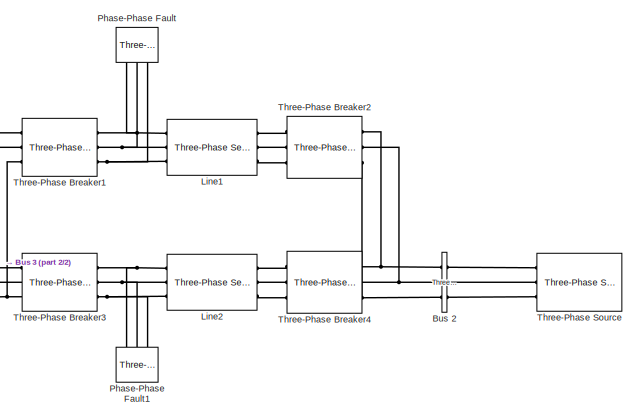
[diagram: root canvas - part 1/2, top right region]
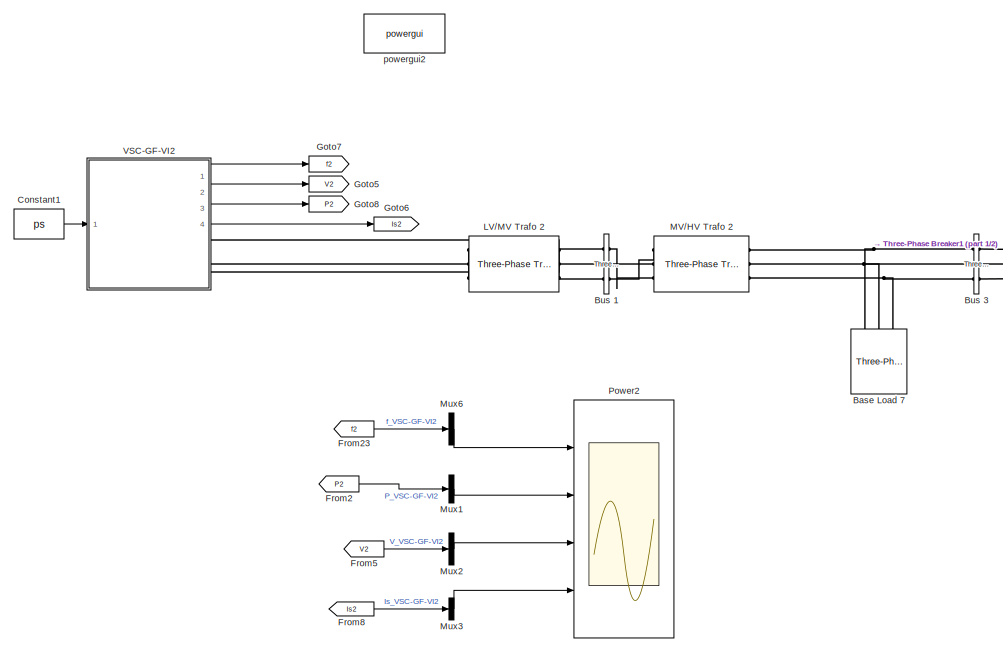
[diagram: root canvas - part 2/2, left side, full height]
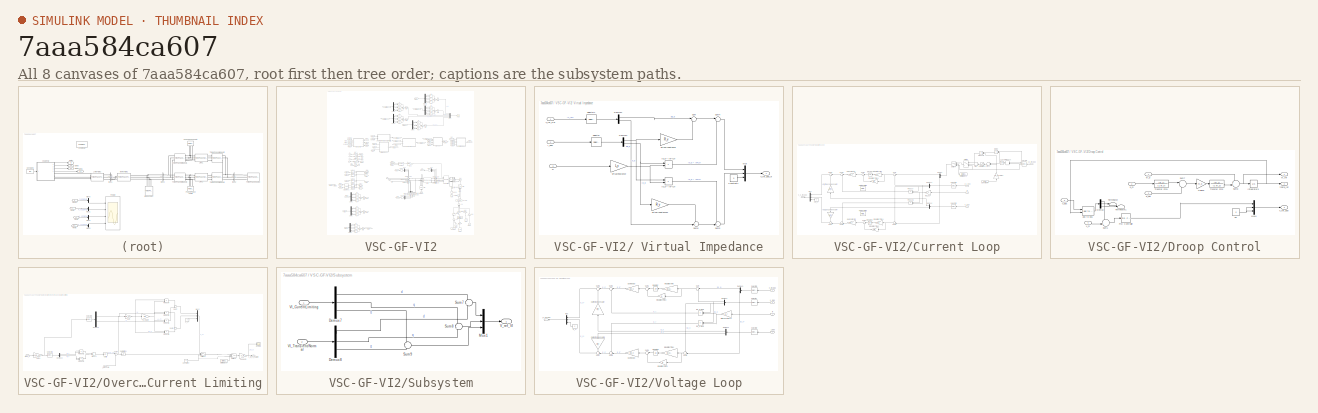
[diagram: thumbnail index - all 8 canvases of the model, root first then tree order]
MODEL slx_7aaa584ca607
KIND model
CONFIG AbsTol = auto
CONFIG EnableMultiTasking = off
CONFIG FixedStep = auto
CONFIG MaxStep = auto
CONFIG MinStep = auto
CONFIG RelTol = 1e-3
CONFIG SampleTimeConstraint = Unconstrained
CONFIG Solver = VariableStepAuto
CONFIG SolverName = VariableStepAuto
CONFIG StartTime = 0.0
CONFIG StopTime = Tend
BLOCK [Reference] Base Load 7  REF=powerlib/Elements/Three-Phase
Parallel RLC Load
  AttributesFormatString = \n
  Ports = [0, 0, 0, 0, 0, 3]
  SourceBlock = powerlib/Elements/Three-Phase\nParallel RLC Load
  SourceProductBaseCode = PS
  SourceProductName = Simscape Electrical
  SourceType = Three-Phase Parallel RLC Load
BLOCK [Reference] Bus 1  REF=powerlib/Measurements/Three-Phase
V-I Measurement
  Ports = [0, 0, 0, 0, 0, 3, 3]
  SourceBlock = powerlib/Measurements/Three-Phase\nV-I Measurement
  SourceProductBaseCode = PS
  SourceProductName = Simscape Electrical
  SourceType = Three-Phase VI Measurement
BLOCK [Reference] Bus 2  REF=powerlib/Measurements/Three-Phase
V-I Measurement
  Ports = [0, 0, 0, 0, 0, 3, 3]
  SourceBlock = powerlib/Measurements/Three-Phase\nV-I Measurement
  SourceProductBaseCode = PS
  SourceProductName = Simscape Electrical
  SourceType = Three-Phase VI Measurement
BLOCK [Reference] Bus 3  REF=powerlib/Measurements/Three-Phase
V-I Measurement
  Ports = [0, 0, 0, 0, 0, 3, 3]
  SourceBlock = powerlib/Measurements/Three-Phase\nV-I Measurement
  SourceProductBaseCode = PS
  SourceProductName = Simscape Electrical
  SourceType = Three-Phase VI Measurement
BLOCK [Constant] Constant1
  Value = ps
BLOCK [From] From2
  GotoTag = P2
BLOCK [From] From23
  GotoTag = f2
BLOCK [From] From5
  GotoTag = V2
BLOCK [From] From8
  GotoTag = Is2
BLOCK [Goto] Goto5
  GotoTag = V2
BLOCK [Goto] Goto6
  GotoTag = Is2
BLOCK [Goto] Goto7
  GotoTag = f2
BLOCK [Goto] Goto8
  GotoTag = P2
BLOCK [Reference] LV//MV Trafo 2  REF=powerlib/Elements/Three-Phase
Transformer
(Two Windings)
  AttributesFormatString = \n
  Ports = [0, 0, 0, 0, 0, 3, 3]
  SourceBlock = powerlib/Elements/Three-Phase\nTransformer\n(Two Windings)
  SourceProductBaseCode = PS
  SourceProductName = Simscape Electrical
  SourceType = Three-Phase Transformer (Two Windings)
BLOCK [Reference] Line1  REF=powerlib/Elements/Three-Phase
Series RLC Branch
  AttributesFormatString = \n
  Ports = [0, 0, 0, 0, 0, 3, 3]
  SourceBlock = powerlib/Elements/Three-Phase\nSeries RLC Branch
  SourceProductBaseCode = PS
  SourceProductName = Simscape Electrical
  SourceType = Three-Phase Series RLC Branch
BLOCK [Reference] Line2  REF=powerlib/Elements/Three-Phase
Series RLC Branch
  AttributesFormatString = \n
  Ports = [0, 0, 0, 0, 0, 3, 3]
  SourceBlock = powerlib/Elements/Three-Phase\nSeries RLC Branch
  SourceProductBaseCode = PS
  SourceProductName = Simscape Electrical
  SourceType = Three-Phase Series RLC Branch
BLOCK [Reference] MV//HV Trafo 2  REF=powerlib/Elements/Three-Phase
Transformer
(Two Windings)
  AttributesFormatString = \n
  Ports = [0, 0, 0, 0, 0, 3, 3]
  SourceBlock = powerlib/Elements/Three-Phase\nTransformer\n(Two Windings)
  SourceProductBaseCode = PS
  SourceProductName = Simscape Electrical
  SourceType = Three-Phase Transformer (Two Windings)
BLOCK [Mux] Mux1
  DisplayOption = bar
  Inputs = 1
  Ports = [1, 1]
BLOCK [Mux] Mux2
  DisplayOption = bar
  Inputs = 1
  Ports = [1, 1]
BLOCK [Mux] Mux3
  DisplayOption = bar
  Inputs = 1
  Ports = [1, 1]
BLOCK [Mux] Mux6
  DisplayOption = bar
  Inputs = 1
  Ports = [1, 1]
BLOCK [Reference] Phase-Phase Fault  REF=powerlib/Elements/Three-Phase Fault
  Ports = [0, 0, 0, 0, 0, 3]
  SourceBlock = powerlib/Elements/Three-Phase Fault
  SourceProductBaseCode = PS
  SourceProductName = Simscape Electrical
  SourceType = Three-Phase Fault
BLOCK [Reference] Phase-Phase Fault1  REF=powerlib/Elements/Three-Phase Fault
  Ports = [0, 0, 0, 0, 0, 3]
  SourceBlock = powerlib/Elements/Three-Phase Fault
  SourceProductBaseCode = PS
  SourceProductName = Simscape Electrical
  SourceType = Three-Phase Fault
BLOCK [Scope] Power2
  Floating = off
  NumInputPorts = 4
  Ports = [4]
  ScopeSpecificationString = Simulink.scopes.TimeScopeBlockCfg('CurrentConfiguration', extmgr.ConfigurationSet(extmgr.Configuration('Core','General UI',true),extmgr.Configuration('Core','Source UI',true),extmgr.Configuration('Sources','WiredSimulink',true,'DataLoggingVariableName','ScopeData1','DataLogging',true,'DataLoggingSaveFormat','StructureWithTime'),extmgr.Configuration('Visuals','Time Domain',true,'SerializedDisplays'...<+3582ch>
BLOCK [Reference] Three-Phase Breaker1  REF=powerlib/Elements/Three-Phase Breaker
  Ports = [0, 0, 0, 0, 0, 3, 3]
  SourceBlock = powerlib/Elements/Three-Phase Breaker
  SourceProductBaseCode = PS
  SourceProductName = Simscape Electrical
  SourceType = Three-Phase Breaker
BLOCK [Reference] Three-Phase Breaker2  REF=powerlib/Elements/Three-Phase Breaker
  Ports = [0, 0, 0, 0, 0, 3, 3]
  SourceBlock = powerlib/Elements/Three-Phase Breaker
  SourceProductBaseCode = PS
  SourceProductName = Simscape Electrical
  SourceType = Three-Phase Breaker
BLOCK [Reference] Three-Phase Breaker3  REF=powerlib/Elements/Three-Phase Breaker
  Ports = [0, 0, 0, 0, 0, 3, 3]
  SourceBlock = powerlib/Elements/Three-Phase Breaker
  SourceProductBaseCode = PS
  SourceProductName = Simscape Electrical
  SourceType = Three-Phase Breaker
BLOCK [Reference] Three-Phase Breaker4  REF=powerlib/Elements/Three-Phase Breaker
  Ports = [0, 0, 0, 0, 0, 3, 3]
  SourceBlock = powerlib/Elements/Three-Phase Breaker
  SourceProductBaseCode = PS
  SourceProductName = Simscape Electrical
  SourceType = Three-Phase Breaker
BLOCK [Reference] Three-Phase Source  REF=powerlib/Electrical
Sources/Three-Phase Source
  Ports = [0, 0, 0, 0, 0, 0, 3]
  SourceBlock = powerlib/Electrical\nSources/Three-Phase Source
  SourceProductBaseCode = PS
  SourceProductName = Simscape Electrical
  SourceType = Three-Phase Source
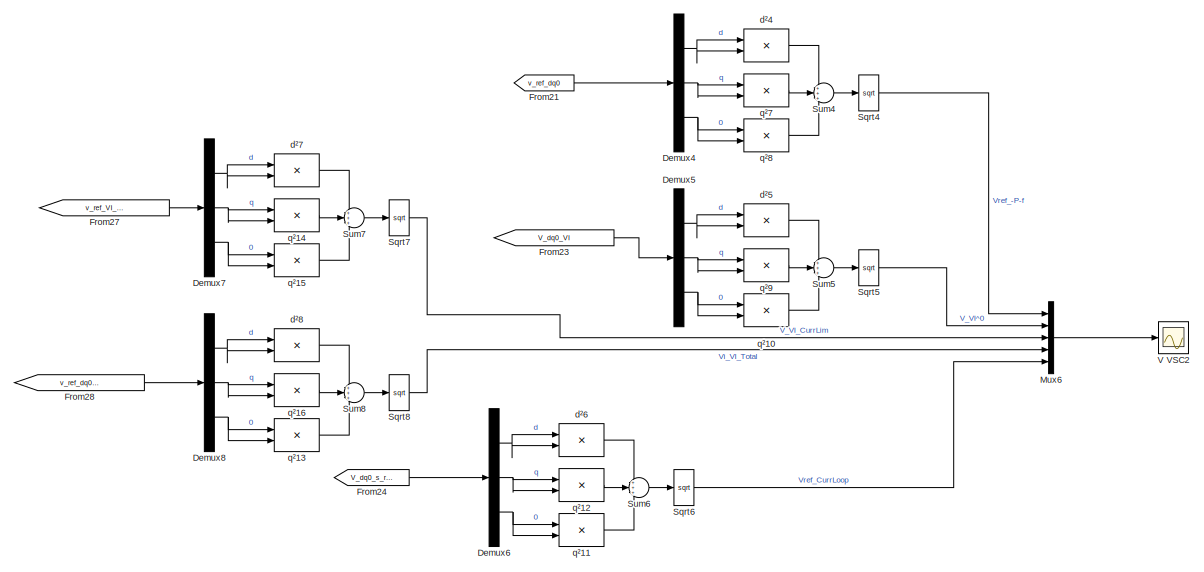
[diagram: VSC-GF-VI2 - part 1/5, top center region]
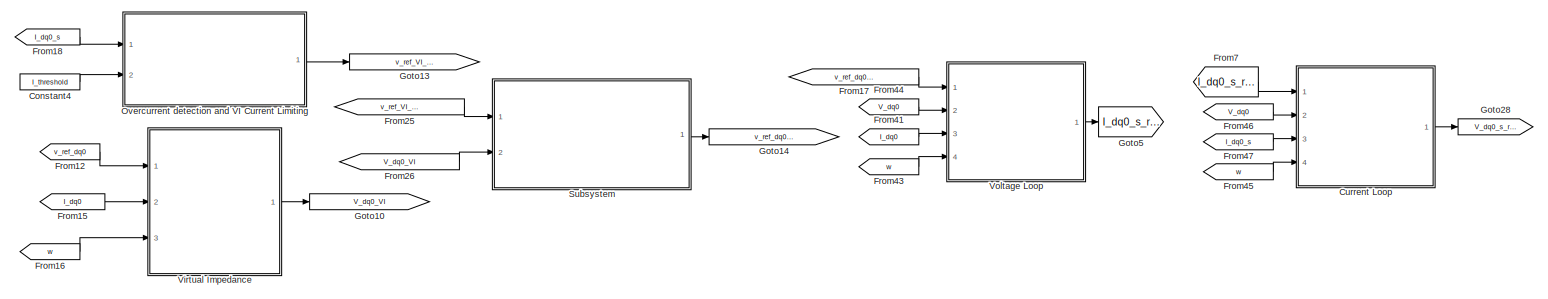
[diagram: VSC-GF-VI2 - part 2/5, central region]
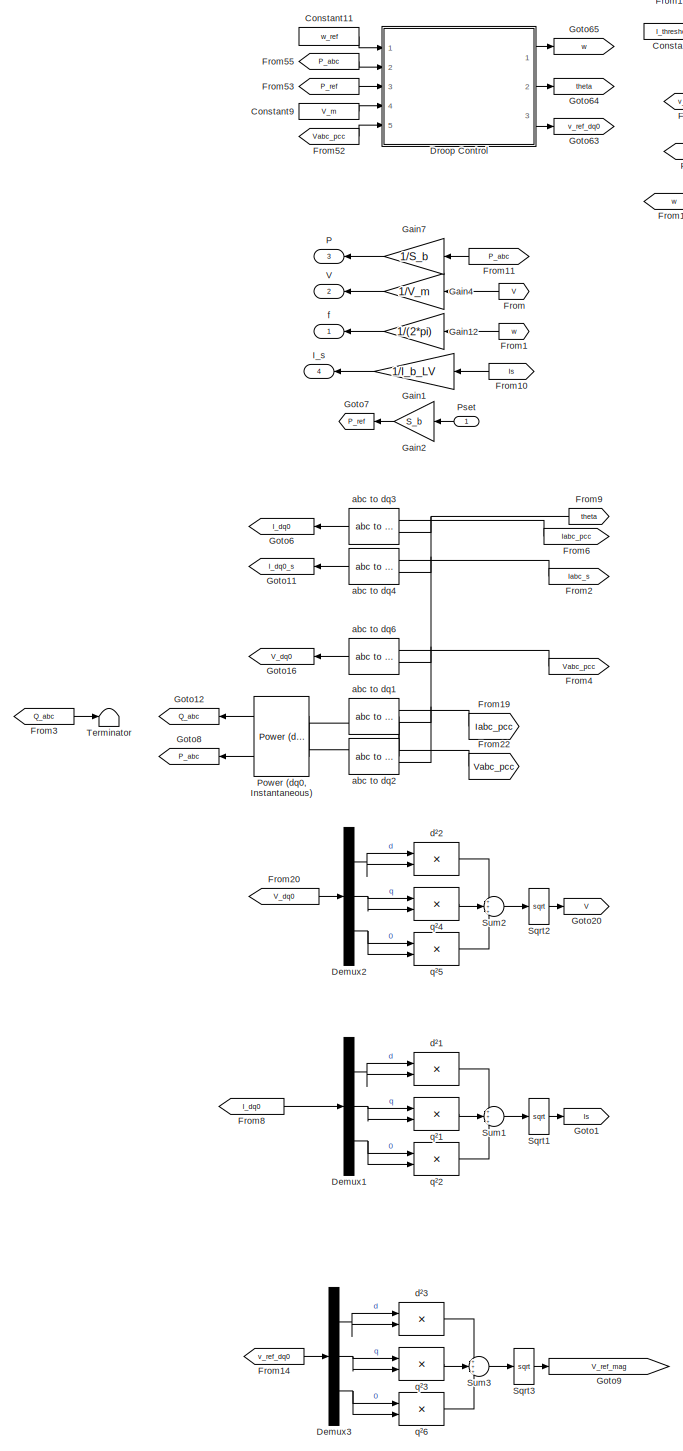
[diagram: VSC-GF-VI2 - part 3/5, middle left region]
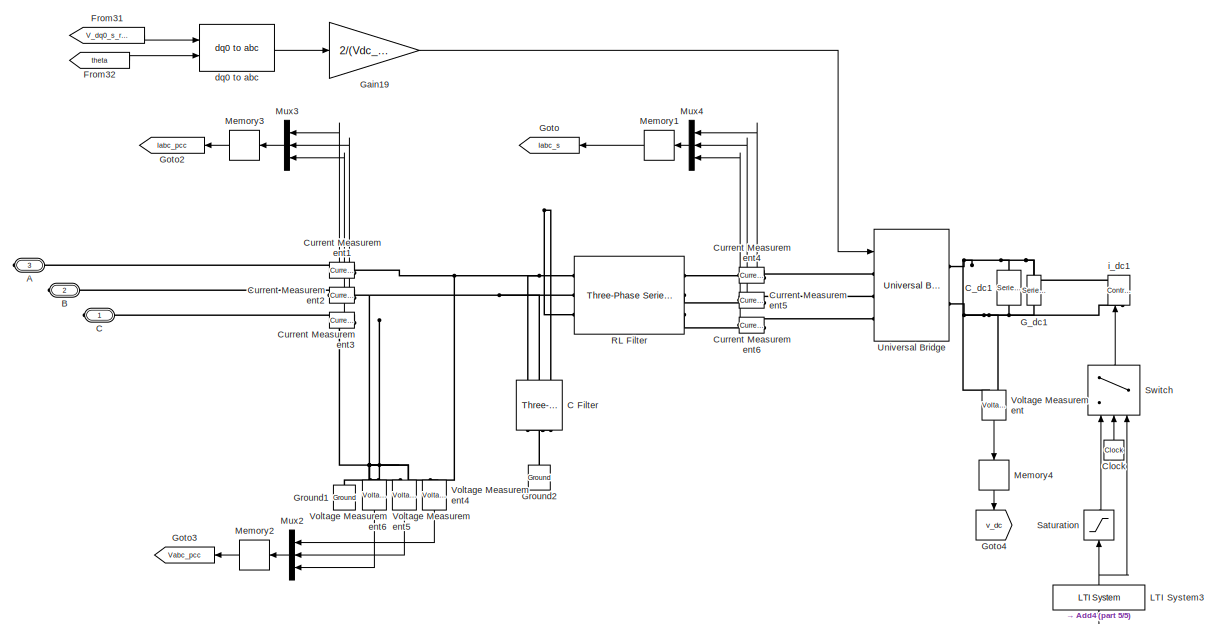
[diagram: VSC-GF-VI2 - part 4/5, middle right region]
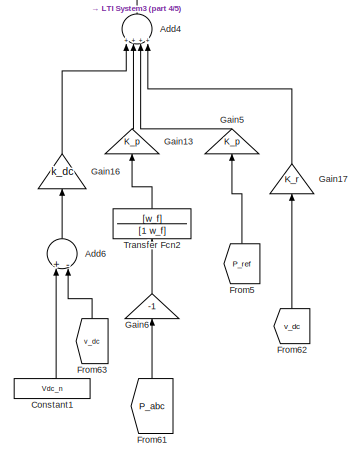
[diagram: VSC-GF-VI2 - part 5/5, bottom right region]
BLOCK [SubSystem] VSC-GF-VI2
  Ports = [1, 4, 0, 0, 0, 0, 3]
  RequestExecContextInheritance = off
BLOCK [SubSystem] VSC-GF-VI2/ Virtual Impedance
  Ports = [3, 1]
  RequestExecContextInheritance = off
BLOCK [Constant] VSC-GF-VI2/ Virtual Impedance/Constant1
  Value = 0
BLOCK [Demux] VSC-GF-VI2/ Virtual Impedance/Demux1
  DisplayOption = bar
  Outputs = 2
  Ports = [1, 2]
BLOCK [Demux] VSC-GF-VI2/ Virtual Impedance/Demux4
  DisplayOption = bar
  Outputs = 2
  Ports = [1, 2]
BLOCK [Inport] VSC-GF-VI2/ Virtual Impedance/I_dq0
  IconDisplay = Port number
  Port = 2
BLOCK [Product] VSC-GF-VI2/ Virtual Impedance/Io_d * (w*Lv) 
  InputSameDT = off
  OutDataTypeStr = Inherit: Inherit via internal rule
  Ports = [2, 1]
  SaturateOnIntegerOverflow = off
BLOCK [Product] VSC-GF-VI2/ Virtual Impedance/Io_q * (w*Lv) 
  InputSameDT = off
  OutDataTypeStr = Inherit: Inherit via internal rule
  Ports = [2, 1]
  SaturateOnIntegerOverflow = off
BLOCK [Mux] VSC-GF-VI2/ Virtual Impedance/Mux
  DisplayOption = bar
  Inputs = 3
  Ports = [3, 1]
BLOCK [Selector] VSC-GF-VI2/ Virtual Impedance/Selector
  IndexOptions = Index vector (dialog)
  Indices = [1 2]
  InputPortWidth = 3
  OutputSizes = 1
  Ports = [1, 1]
BLOCK [Selector] VSC-GF-VI2/ Virtual Impedance/Selector1
  IndexOptions = Index vector (dialog)
  Indices = [1 2]
  InputPortWidth = 3
  OutputSizes = 1
  Ports = [1, 1]
BLOCK [Sum] VSC-GF-VI2/ Virtual Impedance/Sum
  IconShape = round
  InputSameDT = off
  Inputs = |+-
  OutDataTypeStr = Inherit: Inherit via internal rule
  Ports = [2, 1]
  SaturateOnIntegerOverflow = off
BLOCK [Sum] VSC-GF-VI2/ Virtual Impedance/Sum4
  IconShape = round
  InputSameDT = off
  Inputs = |++
  OutDataTypeStr = Inherit: Inherit via internal rule
  Ports = [2, 1]
  SaturateOnIntegerOverflow = off
BLOCK [Sum] VSC-GF-VI2/ Virtual Impedance/Sum5
  IconShape = round
  InputSameDT = off
  Inputs = -+|
  OutDataTypeStr = Inherit: Inherit via internal rule
  Ports = [2, 1]
  SaturateOnIntegerOverflow = off
BLOCK [Sum] VSC-GF-VI2/ Virtual Impedance/Sum6
  IconShape = round
  InputSameDT = off
  Inputs = -+|
  OutDataTypeStr = Inherit: Inherit via internal rule
  Ports = [2, 1]
  SaturateOnIntegerOverflow = off
BLOCK [Inport] VSC-GF-VI2/ Virtual Impedance/V_ref_P-w 
  IconDisplay = Port number
BLOCK [Outport] VSC-GF-VI2/ Virtual Impedance/V_ref_dq0_VI
  IconDisplay = Port number
BLOCK [Gain] VSC-GF-VI2/ Virtual Impedance/Virtual indutance
  Gain = L_v
  OutDataTypeStr = Inherit: Inherit via internal rule
  ParamDataTypeStr = Inherit: Inherit via internal rule
  SaturateOnIntegerOverflow = off
BLOCK [Gain] VSC-GF-VI2/ Virtual Impedance/Virtual resistance
  Gain = R_v
  OutDataTypeStr = Inherit: Inherit via internal rule
  ParamDataTypeStr = Inherit: Inherit via internal rule
  SaturateOnIntegerOverflow = off
BLOCK [Gain] VSC-GF-VI2/ Virtual Impedance/Virtual resistance2 
  Gain = R_v
  OutDataTypeStr = Inherit: Inherit via internal rule
  ParamDataTypeStr = Inherit: Inherit via internal rule
  SaturateOnIntegerOverflow = off
BLOCK [Inport] VSC-GF-VI2/ Virtual Impedance/w
  IconDisplay = Port number
  Port = 3
BLOCK [PMIOPort] VSC-GF-VI2/A
  Port = 3
  Side = Right
BLOCK [Sum] VSC-GF-VI2/Add4
  InputSameDT = off
  Inputs = ++++
  OutDataTypeStr = Inherit: Inherit via internal rule
  Ports = [4, 1]
  SaturateOnIntegerOverflow = off
BLOCK [Sum] VSC-GF-VI2/Add6
  InputSameDT = off
  Inputs = +-
  OutDataTypeStr = Inherit: Inherit via internal rule
  Ports = [2, 1]
  SaturateOnIntegerOverflow = off
BLOCK [PMIOPort] VSC-GF-VI2/B
  Port = 2
  Side = Right
BLOCK [PMIOPort] VSC-GF-VI2/C
  Side = Right
BLOCK [Reference] VSC-GF-VI2/C Filter  REF=powerlib/Elements/Three-Phase
Parallel RLC Branch
  AttributesFormatString = \n
  Ports = [0, 0, 0, 0, 0, 3, 3]
  SourceBlock = powerlib/Elements/Three-Phase\nParallel RLC Branch
  SourceProductBaseCode = PS
  SourceProductName = Simscape Electrical
  SourceType = Three-Phase Parallel RLC Branch
BLOCK [Reference] VSC-GF-VI2/C_dc1  REF=powerlib/Elements/Series RLC Branch
  Ports = [0, 0, 0, 0, 0, 1, 1]
  SourceBlock = powerlib/Elements/Series RLC Branch
  SourceProductBaseCode = PS
  SourceProductName = Simscape Electrical
  SourceType = Series RLC Branch
BLOCK [Clock] VSC-GF-VI2/Clock
BLOCK [Constant] VSC-GF-VI2/Constant1
  Value = Vdc_n
BLOCK [Constant] VSC-GF-VI2/Constant11
  Value = w_ref
BLOCK [Constant] VSC-GF-VI2/Constant4
  Value = I_threshold
BLOCK [Constant] VSC-GF-VI2/Constant9
  Value = V_m
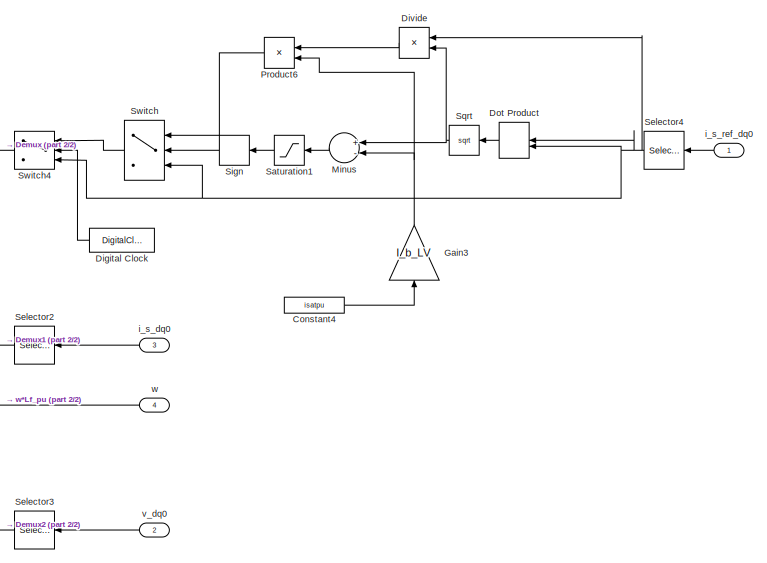
[diagram: VSC-GF-VI2/Current Loop - part 1/2, middle right region]
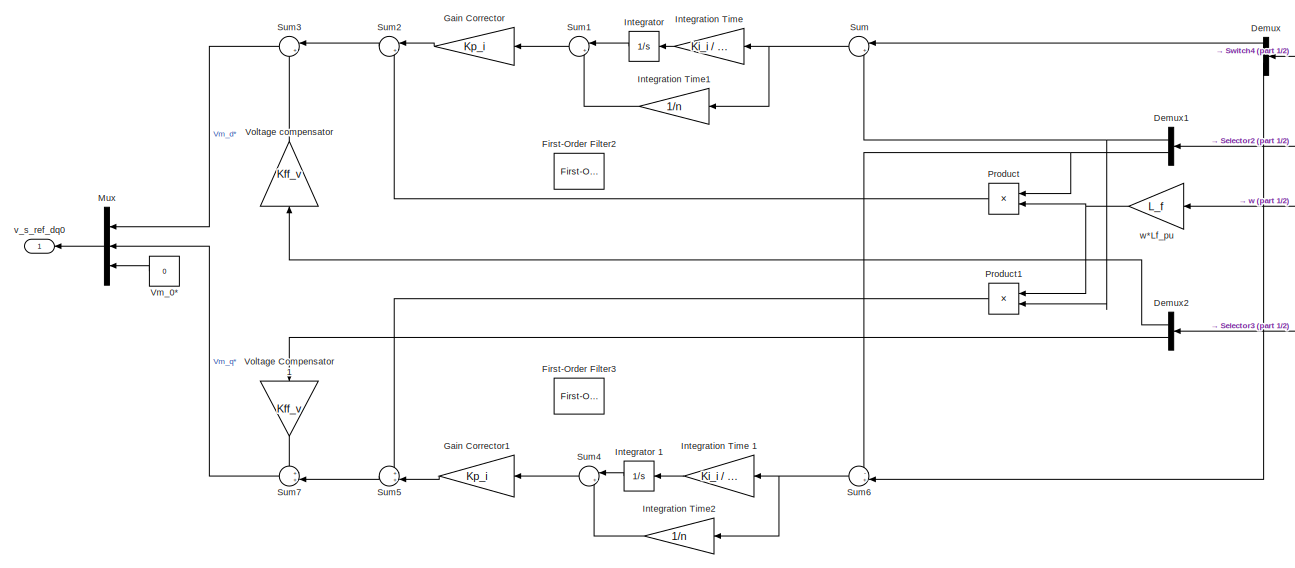
[diagram: VSC-GF-VI2/Current Loop - part 2/2, middle left region]
BLOCK [SubSystem] VSC-GF-VI2/Current Loop
  Ports = [4, 1]
  RequestExecContextInheritance = off
BLOCK [Constant] VSC-GF-VI2/Current Loop/Constant4
  Value = isatpu
BLOCK [Demux] VSC-GF-VI2/Current Loop/Demux
  DisplayOption = bar
  Outputs = 2
  Ports = [1, 2]
BLOCK [Demux] VSC-GF-VI2/Current Loop/Demux1
  DisplayOption = bar
  Outputs = 2
  Ports = [1, 2]
BLOCK [Demux] VSC-GF-VI2/Current Loop/Demux2
  DisplayOption = bar
  Outputs = 2
  Ports = [1, 2]
BLOCK [DigitalClock] VSC-GF-VI2/Current Loop/Digital Clock
  SampleTime = T_s
BLOCK [Product] VSC-GF-VI2/Current Loop/Divide
  InputSameDT = off
  Inputs = */
  OutDataTypeStr = Inherit: Inherit via internal rule
  Ports = [2, 1]
  RndMeth = Floor
  SaturateOnIntegerOverflow = off
BLOCK [DotProduct] VSC-GF-VI2/Current Loop/Dot Product
  OutDataTypeStr = Inherit: Inherit via internal rule
BLOCK [Reference] VSC-GF-VI2/Current Loop/First-Order Filter2  REF=powerlib_meascontrol/Filters/First-Order
Filter
  Commented = on
  Ports = [1, 1]
  SourceBlock = powerlib_meascontrol/Filters/First-Order\nFilter
  SourceProductBaseCode = PS
  SourceProductName = Simscape Electrical
  SourceType = First-Order Filter
BLOCK [Reference] VSC-GF-VI2/Current Loop/First-Order Filter3  REF=powerlib_meascontrol/Filters/First-Order
Filter
  Commented = on
  Ports = [1, 1]
  SourceBlock = powerlib_meascontrol/Filters/First-Order\nFilter
  SourceProductBaseCode = PS
  SourceProductName = Simscape Electrical
  SourceType = First-Order Filter
BLOCK [Gain] VSC-GF-VI2/Current Loop/Gain Corrector
  Gain = Kp_i
  OutDataTypeStr = Inherit: Inherit via internal rule
  ParamDataTypeStr = Inherit: Inherit via internal rule
  SaturateOnIntegerOverflow = off
BLOCK [Gain] VSC-GF-VI2/Current Loop/Gain Corrector1
  Gain = Kp_i
  OutDataTypeStr = Inherit: Inherit via internal rule
  ParamDataTypeStr = Inherit: Inherit via internal rule
  SaturateOnIntegerOverflow = off
BLOCK [Gain] VSC-GF-VI2/Current Loop/Gain3
  Gain = I_b_LV
  OutDataTypeStr = Inherit: Inherit via internal rule
  ParamDataTypeStr = Inherit: Inherit via internal rule
  SaturateOnIntegerOverflow = off
BLOCK [Gain] VSC-GF-VI2/Current Loop/Integration Time
  Gain = Ki_i / Kp_i
  OutDataTypeStr = Inherit: Inherit via internal rule
  ParamDataTypeStr = Inherit: Inherit via internal rule
  SaturateOnIntegerOverflow = off
BLOCK [Gain] VSC-GF-VI2/Current Loop/Integration Time 1
  Gain = Ki_i / Kp_i
  OutDataTypeStr = Inherit: Inherit via internal rule
  ParamDataTypeStr = Inherit: Inherit via internal rule
  SaturateOnIntegerOverflow = off
BLOCK [Gain] VSC-GF-VI2/Current Loop/Integration Time1
  Gain = 1/n
  OutDataTypeStr = Inherit: Inherit via internal rule
  ParamDataTypeStr = Inherit: Inherit via internal rule
  SaturateOnIntegerOverflow = off
BLOCK [Gain] VSC-GF-VI2/Current Loop/Integration Time2
  Gain = 1/n
  OutDataTypeStr = Inherit: Inherit via internal rule
  ParamDataTypeStr = Inherit: Inherit via internal rule
  SaturateOnIntegerOverflow = off
BLOCK [Integrator] VSC-GF-VI2/Current Loop/Integrator
  InitialCondition = 0.0001
  Ports = [1, 1]
BLOCK [Integrator] VSC-GF-VI2/Current Loop/Integrator 1
  Ports = [1, 1]
BLOCK [Sum] VSC-GF-VI2/Current Loop/Minus
  InputSameDT = off
  Inputs = +-
  OutDataTypeStr = Inherit: Inherit via internal rule
  Ports = [2, 1]
  SaturateOnIntegerOverflow = off
BLOCK [Mux] VSC-GF-VI2/Current Loop/Mux
  DisplayOption = bar
  Inputs = 3
  Ports = [3, 1]
BLOCK [Product] VSC-GF-VI2/Current Loop/Product
  InputSameDT = off
  OutDataTypeStr = Inherit: Inherit via internal rule
  Ports = [2, 1]
  SaturateOnIntegerOverflow = off
BLOCK [Product] VSC-GF-VI2/Current Loop/Product1
  InputSameDT = off
  OutDataTypeStr = Inherit: Inherit via internal rule
  Ports = [2, 1]
  SaturateOnIntegerOverflow = off
BLOCK [Product] VSC-GF-VI2/Current Loop/Product6
  InputSameDT = off
  OutDataTypeStr = Inherit: Inherit via internal rule
  Ports = [2, 1]
  SaturateOnIntegerOverflow = off
BLOCK [Saturate] VSC-GF-VI2/Current Loop/Saturation1
  InputPortMap = u0
  LowerLimit = 0
  Ports = [1, 1]
  UpperLimit = inf
BLOCK [Selector] VSC-GF-VI2/Current Loop/Selector2
  IndexOptions = Index vector (dialog)
  Indices = [1 2]
  InputPortWidth = 3
  OutputSizes = 1
  Ports = [1, 1]
BLOCK [Selector] VSC-GF-VI2/Current Loop/Selector3
  IndexOptions = Index vector (dialog)
  Indices = [1 2]
  InputPortWidth = 3
  OutputSizes = 1
  Ports = [1, 1]
BLOCK [Selector] VSC-GF-VI2/Current Loop/Selector4
  IndexOptions = Index vector (dialog)
  Indices = [1 2]
  InputPortWidth = 3
  OutputSizes = 1
  Ports = [1, 1]
BLOCK [Signum] VSC-GF-VI2/Current Loop/Sign
BLOCK [Sqrt] VSC-GF-VI2/Current Loop/Sqrt
BLOCK [Sum] VSC-GF-VI2/Current Loop/Sum
  IconShape = round
  InputSameDT = off
  Inputs = |+-
  OutDataTypeStr = Inherit: Inherit via internal rule
  Ports = [2, 1]
  SaturateOnIntegerOverflow = off
BLOCK [Sum] VSC-GF-VI2/Current Loop/Sum1
  IconShape = round
  InputSameDT = off
  Inputs = |++
  OutDataTypeStr = Inherit: Inherit via internal rule
  Ports = [2, 1]
  SaturateOnIntegerOverflow = off
BLOCK [Sum] VSC-GF-VI2/Current Loop/Sum2
  IconShape = round
  InputSameDT = off
  Inputs = |+-
  OutDataTypeStr = Inherit: Inherit via internal rule
  Ports = [2, 1]
  SaturateOnIntegerOverflow = off
BLOCK [Sum] VSC-GF-VI2/Current Loop/Sum3
  IconShape = round
  InputSameDT = off
  Inputs = |++
  OutDataTypeStr = Inherit: Inherit via internal rule
  Ports = [2, 1]
  SaturateOnIntegerOverflow = off
BLOCK [Sum] VSC-GF-VI2/Current Loop/Sum4
  IconShape = round
  InputSameDT = off
  Inputs = |++
  OutDataTypeStr = Inherit: Inherit via internal rule
  Ports = [2, 1]
  SaturateOnIntegerOverflow = off
BLOCK [Sum] VSC-GF-VI2/Current Loop/Sum5
  IconShape = round
  InputSameDT = off
  Inputs = ++|
  OutDataTypeStr = Inherit: Inherit via internal rule
  Ports = [2, 1]
  SaturateOnIntegerOverflow = off
BLOCK [Sum] VSC-GF-VI2/Current Loop/Sum6
  IconShape = round
  InputSameDT = off
  Inputs = -+|
  OutDataTypeStr = Inherit: Inherit via internal rule
  Ports = [2, 1]
  SaturateOnIntegerOverflow = off
BLOCK [Sum] VSC-GF-VI2/Current Loop/Sum7
  IconShape = round
  InputSameDT = off
  Inputs = ++|
  OutDataTypeStr = Inherit: Inherit via internal rule
  Ports = [2, 1]
  SaturateOnIntegerOverflow = off
BLOCK [Switch] VSC-GF-VI2/Current Loop/Switch
  Criteria = u2 > Threshold
  InputSameDT = off
  SaturateOnIntegerOverflow = off
BLOCK [Switch] VSC-GF-VI2/Current Loop/Switch4
  Criteria = u2 > Threshold
  InputSameDT = off
  SaturateOnIntegerOverflow = off
  Threshold = 5
BLOCK [Constant] VSC-GF-VI2/Current Loop/Vm_0*
  Value = 0
BLOCK [Gain] VSC-GF-VI2/Current Loop/Voltage Compensator 1
  Gain = Kff_v
  OutDataTypeStr = Inherit: Inherit via internal rule
  ParamDataTypeStr = Inherit: Inherit via internal rule
  SaturateOnIntegerOverflow = off
BLOCK [Gain] VSC-GF-VI2/Current Loop/Voltage compensator
  Gain = Kff_v
  OutDataTypeStr = Inherit: Inherit via internal rule
  ParamDataTypeStr = Inherit: Inherit via internal rule
  SaturateOnIntegerOverflow = off
BLOCK [Inport] VSC-GF-VI2/Current Loop/i_s_dq0
  IconDisplay = Port number
  Port = 3
BLOCK [Inport] VSC-GF-VI2/Current Loop/i_s_ref_dq0
  IconDisplay = Port number
BLOCK [Inport] VSC-GF-VI2/Current Loop/v_dq0
  IconDisplay = Port number
  Port = 2
BLOCK [Outport] VSC-GF-VI2/Current Loop/v_s_ref_dq0
  IconDisplay = Port number
  VectorParamsAs1DForOutWhenUnconnected = off
BLOCK [Inport] VSC-GF-VI2/Current Loop/w
  IconDisplay = Port number
  Port = 4
BLOCK [Gain] VSC-GF-VI2/Current Loop/w*Lf_pu
  Gain = L_f
  OutDataTypeStr = Inherit: Inherit via internal rule
  ParamDataTypeStr = Inherit: Inherit via internal rule
  SaturateOnIntegerOverflow = off
BLOCK [Reference] VSC-GF-VI2/Current Measurement1  REF=powerlib/Measurements/Current Measurement
  Ports = [0, 1, 0, 0, 0, 1, 1]
  SourceBlock = powerlib/Measurements/Current Measurement
  SourceProductBaseCode = PS
  SourceProductName = Simscape Electrical
  SourceType = Current Measurement
  UserDataPersistent = on
BLOCK [Reference] VSC-GF-VI2/Current Measurement2  REF=powerlib/Measurements/Current Measurement
  Ports = [0, 1, 0, 0, 0, 1, 1]
  SourceBlock = powerlib/Measurements/Current Measurement
  SourceProductBaseCode = PS
  SourceProductName = Simscape Electrical
  SourceType = Current Measurement
  UserDataPersistent = on
BLOCK [Reference] VSC-GF-VI2/Current Measurement3  REF=powerlib/Measurements/Current Measurement
  Ports = [0, 1, 0, 0, 0, 1, 1]
  SourceBlock = powerlib/Measurements/Current Measurement
  SourceProductBaseCode = PS
  SourceProductName = Simscape Electrical
  SourceType = Current Measurement
  UserDataPersistent = on
BLOCK [Reference] VSC-GF-VI2/Current Measurement4  REF=powerlib/Measurements/Current Measurement
  Ports = [0, 1, 0, 0, 0, 1, 1]
  SourceBlock = powerlib/Measurements/Current Measurement
  SourceProductBaseCode = PS
  SourceProductName = Simscape Electrical
  SourceType = Current Measurement
  UserDataPersistent = on
BLOCK [Reference] VSC-GF-VI2/Current Measurement5  REF=powerlib/Measurements/Current Measurement
  Ports = [0, 1, 0, 0, 0, 1, 1]
  SourceBlock = powerlib/Measurements/Current Measurement
  SourceProductBaseCode = PS
  SourceProductName = Simscape Electrical
  SourceType = Current Measurement
  UserDataPersistent = on
BLOCK [Reference] VSC-GF-VI2/Current Measurement6  REF=powerlib/Measurements/Current Measurement
  Ports = [0, 1, 0, 0, 0, 1, 1]
  SourceBlock = powerlib/Measurements/Current Measurement
  SourceProductBaseCode = PS
  SourceProductName = Simscape Electrical
  SourceType = Current Measurement
  UserDataPersistent = on
BLOCK [Demux] VSC-GF-VI2/Demux1
  DisplayOption = bar
  Outputs = 3
  Ports = [1, 3]
BLOCK [Demux] VSC-GF-VI2/Demux2
  DisplayOption = bar
  Outputs = 3
  Ports = [1, 3]
BLOCK [Demux] VSC-GF-VI2/Demux3
  DisplayOption = bar
  Outputs = 3
  Ports = [1, 3]
BLOCK [Demux] VSC-GF-VI2/Demux4
  DisplayOption = bar
  Outputs = 3
  Ports = [1, 3]
BLOCK [Demux] VSC-GF-VI2/Demux5
  DisplayOption = bar
  Outputs = 3
  Ports = [1, 3]
BLOCK [Demux] VSC-GF-VI2/Demux6
  DisplayOption = bar
  Outputs = 3
  Ports = [1, 3]
BLOCK [Demux] VSC-GF-VI2/Demux7
  DisplayOption = bar
  Outputs = 3
  Ports = [1, 3]
BLOCK [Demux] VSC-GF-VI2/Demux8
  DisplayOption = bar
  Outputs = 3
  Ports = [1, 3]
BLOCK [SubSystem] VSC-GF-VI2/Droop Control
  Ports = [5, 3]
  RequestExecContextInheritance = off
BLOCK [Demux] VSC-GF-VI2/Droop Control/Demux
  DisplayOption = bar
  Outputs = 3
  Ports = [1, 3]
BLOCK [Gain] VSC-GF-VI2/Droop Control/Gain20
  Gain = m_p
  OutDataTypeStr = Inherit: Inherit via internal rule
  ParamDataTypeStr = Inherit: Inherit via internal rule
  SaturateOnIntegerOverflow = off
BLOCK [Integrator] VSC-GF-VI2/Droop Control/Integrator3
  Ports = [1, 1]
BLOCK [Mux] VSC-GF-VI2/Droop Control/Mux4
  DisplayOption = bar
  Inputs = 3
  Ports = [3, 1]
BLOCK [Reference] VSC-GF-VI2/Droop Control/PID Controller  REF=simulink/Continuous/PID Controller
  Ports = [1, 1]
  SourceBlock = simulink/Continuous/PID Controller
  SourceProductBaseCode = SL
  SourceProductName = Simulink
  SourceType = PID 1dof
BLOCK [Sum] VSC-GF-VI2/Droop Control/Sum1
  IconShape = round
  InputSameDT = off
  Inputs = -+|
  OutDataTypeStr = Inherit: Inherit via internal rule
  Ports = [2, 1]
  SaturateOnIntegerOverflow = off
BLOCK [Sum] VSC-GF-VI2/Droop Control/Sum7
  IconShape = round
  InputSameDT = off
  Inputs = |-+
  OutDataTypeStr = Inherit: Inherit via internal rule
  Ports = [2, 1]
  SaturateOnIntegerOverflow = off
BLOCK [Sum] VSC-GF-VI2/Droop Control/Sum8
  IconShape = round
  InputSameDT = off
  Inputs = ++|
  OutDataTypeStr = Inherit: Inherit via internal rule
  Ports = [2, 1]
  SaturateOnIntegerOverflow = off
BLOCK [Terminator] VSC-GF-VI2/Droop Control/Terminator
BLOCK [Terminator] VSC-GF-VI2/Droop Control/Terminator1
BLOCK [TransferFcn] VSC-GF-VI2/Droop Control/Transfer Fcn1
  Denominator = [1 w_f]
  Numerator = [w_f]
BLOCK [TransferFcn] VSC-GF-VI2/Droop Control/Transfer Fcn2
  Denominator = [1 w_c]
  Numerator = [w_c]
BLOCK [Inport] VSC-GF-VI2/Droop Control/V_abc
  IconDisplay = Port number
  Port = 5
BLOCK [Reference] VSC-GF-VI2/Droop Control/abc to dq1  REF=powerlib_meascontrol/Transformations/abc to dq0
  Ports = [2, 1]
  SourceBlock = powerlib_meascontrol/Transformations/abc to dq0
  SourceProductBaseCode = PS
  SourceProductName = Simscape Electrical
  SourceType = abc to dq0 Transformation
BLOCK [Inport] VSC-GF-VI2/Droop Control/p_m
  IconDisplay = Port number
  Port = 2
BLOCK [Inport] VSC-GF-VI2/Droop Control/p_set
  IconDisplay = Port number
  Port = 3
BLOCK [Constant] VSC-GF-VI2/Droop Control/q0
  Value = 0
BLOCK [Outport] VSC-GF-VI2/Droop Control/theta_ref
  IconDisplay = Port number
  Port = 2
  VectorParamsAs1DForOutWhenUnconnected = off
BLOCK [Inport] VSC-GF-VI2/Droop Control/v_m
  IconDisplay = Port number
  Port = 4
BLOCK [Outport] VSC-GF-VI2/Droop Control/v_ref_dq0
  IconDisplay = Port number
  Port = 3
  VectorParamsAs1DForOutWhenUnconnected = off
BLOCK [Inport] VSC-GF-VI2/Droop Control/w_b
  IconDisplay = Port number
BLOCK [Outport] VSC-GF-VI2/Droop Control/w_ref
  IconDisplay = Port number
  VectorParamsAs1DForOutWhenUnconnected = off
BLOCK [From] VSC-GF-VI2/From
  GotoTag = V
BLOCK [From] VSC-GF-VI2/From1
  GotoTag = w
BLOCK [From] VSC-GF-VI2/From10
  GotoTag = Is
BLOCK [From] VSC-GF-VI2/From11
  GotoTag = P_abc
BLOCK [From] VSC-GF-VI2/From12
  GotoTag = v_ref_dq0
BLOCK [From] VSC-GF-VI2/From14
  GotoTag = v_ref_dq0
BLOCK [From] VSC-GF-VI2/From15
  GotoTag = I_dq0
BLOCK [From] VSC-GF-VI2/From16
  GotoTag = w
BLOCK [From] VSC-GF-VI2/From17
  GotoTag = v_ref_dq0_VI
BLOCK [From] VSC-GF-VI2/From18
  GotoTag = I_dq0_s
BLOCK [From] VSC-GF-VI2/From19
  GotoTag = Iabc_pcc
BLOCK [From] VSC-GF-VI2/From2
  GotoTag = Iabc_s
BLOCK [From] VSC-GF-VI2/From20
  GotoTag = V_dq0
BLOCK [From] VSC-GF-VI2/From21
  GotoTag = v_ref_dq0
BLOCK [From] VSC-GF-VI2/From22
  GotoTag = Vabc_pcc
BLOCK [From] VSC-GF-VI2/From23
  GotoTag = V_dq0_VI
BLOCK [From] VSC-GF-VI2/From24
  GotoTag = V_dq0_s_ref
BLOCK [From] VSC-GF-VI2/From25
  GotoTag = v_ref_VI_CurrLim
BLOCK [From] VSC-GF-VI2/From26
  GotoTag = V_dq0_VI
BLOCK [From] VSC-GF-VI2/From27
  GotoTag = v_ref_VI_CurrLim
BLOCK [From] VSC-GF-VI2/From28
  GotoTag = v_ref_dq0_VI
BLOCK [From] VSC-GF-VI2/From3
  GotoTag = Q_abc
BLOCK [From] VSC-GF-VI2/From31
  GotoTag = V_dq0_s_ref
BLOCK [From] VSC-GF-VI2/From32
  GotoTag = theta
BLOCK [From] VSC-GF-VI2/From4
  GotoTag = Vabc_pcc
BLOCK [From] VSC-GF-VI2/From41
  GotoTag = I_dq0
BLOCK [From] VSC-GF-VI2/From43
  GotoTag = w
BLOCK [From] VSC-GF-VI2/From44
  GotoTag = V_dq0
BLOCK [From] VSC-GF-VI2/From45
  GotoTag = w
BLOCK [From] VSC-GF-VI2/From46
  GotoTag = V_dq0
BLOCK [From] VSC-GF-VI2/From47
  GotoTag = I_dq0_s
BLOCK [From] VSC-GF-VI2/From5
  GotoTag = P_ref
BLOCK [From] VSC-GF-VI2/From52
  GotoTag = Vabc_pcc
BLOCK [From] VSC-GF-VI2/From53
  GotoTag = P_ref
BLOCK [From] VSC-GF-VI2/From55
  GotoTag = P_abc
BLOCK [From] VSC-GF-VI2/From6
  GotoTag = Iabc_pcc
BLOCK [From] VSC-GF-VI2/From61
  GotoTag = P_abc
BLOCK [From] VSC-GF-VI2/From62
  GotoTag = v_dc
BLOCK [From] VSC-GF-VI2/From63
  GotoTag = v_dc
BLOCK [From] VSC-GF-VI2/From7
  GotoTag = I_dq0_s_ref
BLOCK [From] VSC-GF-VI2/From8
  GotoTag = I_dq0
BLOCK [From] VSC-GF-VI2/From9
  GotoTag = theta
BLOCK [Reference] VSC-GF-VI2/G_dc1  REF=powerlib/Elements/Series RLC Branch
  Ports = [0, 0, 0, 0, 0, 1, 1]
  SourceBlock = powerlib/Elements/Series RLC Branch
  SourceProductBaseCode = PS
  SourceProductName = Simscape Electrical
  SourceType = Series RLC Branch
BLOCK [Gain] VSC-GF-VI2/Gain1
  Gain = 1/I_b_LV
  OutDataTypeStr = Inherit: Inherit via internal rule
  ParamDataTypeStr = Inherit: Inherit via internal rule
  SaturateOnIntegerOverflow = off
BLOCK [Gain] VSC-GF-VI2/Gain12
  Gain = 1/(2*pi)
  OutDataTypeStr = Inherit: Inherit via internal rule
  ParamDataTypeStr = Inherit: Inherit via internal rule
  SaturateOnIntegerOverflow = off
BLOCK [Gain] VSC-GF-VI2/Gain13
  Gain = K_p
  OutDataTypeStr = Inherit: Inherit via internal rule
  ParamDataTypeStr = Inherit: Inherit via internal rule
  SaturateOnIntegerOverflow = off
BLOCK [Gain] VSC-GF-VI2/Gain16
  Gain = k_dc
  OutDataTypeStr = Inherit: Inherit via internal rule
  ParamDataTypeStr = Inherit: Inherit via internal rule
  SaturateOnIntegerOverflow = off
BLOCK [Gain] VSC-GF-VI2/Gain17
  Gain = K_r
  OutDataTypeStr = Inherit: Inherit via internal rule
  ParamDataTypeStr = Inherit: Inherit via internal rule
  SaturateOnIntegerOverflow = off
BLOCK [Gain] VSC-GF-VI2/Gain19
  Gain = 2/(Vdc_n)
  OutDataTypeStr = Inherit: Inherit via internal rule
  ParamDataTypeStr = Inherit: Inherit via internal rule
  SaturateOnIntegerOverflow = off
BLOCK [Gain] VSC-GF-VI2/Gain2
  Gain = S_b
  OutDataTypeStr = Inherit: Inherit via internal rule
  ParamDataTypeStr = Inherit: Inherit via internal rule
  SaturateOnIntegerOverflow = off
BLOCK [Gain] VSC-GF-VI2/Gain4
  Gain = 1/V_m
  OutDataTypeStr = Inherit: Inherit via internal rule
  ParamDataTypeStr = Inherit: Inherit via internal rule
  SaturateOnIntegerOverflow = off
BLOCK [Gain] VSC-GF-VI2/Gain5
  Gain = K_p
  OutDataTypeStr = Inherit: Inherit via internal rule
  ParamDataTypeStr = Inherit: Inherit via internal rule
  SaturateOnIntegerOverflow = off
BLOCK [Gain] VSC-GF-VI2/Gain6
  Gain = -1
  OutDataTypeStr = Inherit: Inherit via internal rule
  ParamDataTypeStr = Inherit: Inherit via internal rule
  SaturateOnIntegerOverflow = off
BLOCK [Gain] VSC-GF-VI2/Gain7
  Gain = 1/S_b
  OutDataTypeStr = Inherit: Inherit via internal rule
  ParamDataTypeStr = Inherit: Inherit via internal rule
  SaturateOnIntegerOverflow = off
BLOCK [Goto] VSC-GF-VI2/Goto
  GotoTag = Iabc_s
BLOCK [Goto] VSC-GF-VI2/Goto1
  GotoTag = Is
BLOCK [Goto] VSC-GF-VI2/Goto10
  GotoTag = V_dq0_VI
BLOCK [Goto] VSC-GF-VI2/Goto11
  GotoTag = I_dq0_s
BLOCK [Goto] VSC-GF-VI2/Goto12
  GotoTag = Q_abc
BLOCK [Goto] VSC-GF-VI2/Goto13
  GotoTag = v_ref_VI_CurrLim
BLOCK [Goto] VSC-GF-VI2/Goto14
  GotoTag = v_ref_dq0_VI
BLOCK [Goto] VSC-GF-VI2/Goto16
  GotoTag = V_dq0
BLOCK [Goto] VSC-GF-VI2/Goto2
  GotoTag = Iabc_pcc
BLOCK [Goto] VSC-GF-VI2/Goto20
  GotoTag = V
BLOCK [Goto] VSC-GF-VI2/Goto28
  GotoTag = V_dq0_s_ref
BLOCK [Goto] VSC-GF-VI2/Goto3
  GotoTag = Vabc_pcc
BLOCK [Goto] VSC-GF-VI2/Goto4
  GotoTag = v_dc
BLOCK [Goto] VSC-GF-VI2/Goto5
  GotoTag = I_dq0_s_ref
BLOCK [Goto] VSC-GF-VI2/Goto6
  GotoTag = I_dq0
BLOCK [Goto] VSC-GF-VI2/Goto63
  GotoTag = v_ref_dq0
BLOCK [Goto] VSC-GF-VI2/Goto64
  GotoTag = theta
BLOCK [Goto] VSC-GF-VI2/Goto65
  GotoTag = w
BLOCK [Goto] VSC-GF-VI2/Goto7
  GotoTag = P_ref
BLOCK [Goto] VSC-GF-VI2/Goto8
  GotoTag = P_abc
BLOCK [Goto] VSC-GF-VI2/Goto9
  GotoTag = V_ref_mag
BLOCK [Reference] VSC-GF-VI2/Ground1  REF=powerlib/Elements/Ground
  Ports = [0, 0, 0, 0, 0, 1]
  SourceBlock = powerlib/Elements/Ground
  SourceProductBaseCode = PS
  SourceProductName = Simscape Electrical
  SourceType = Ground
BLOCK [Reference] VSC-GF-VI2/Ground2  REF=powerlib/Elements/Ground
  Ports = [0, 0, 0, 0, 0, 1]
  SourceBlock = powerlib/Elements/Ground
  SourceProductBaseCode = PS
  SourceProductName = Simscape Electrical
  SourceType = Ground
BLOCK [Outport] VSC-GF-VI2/I_s
  IconDisplay = Port number
  Port = 4
  VectorParamsAs1DForOutWhenUnconnected = off
BLOCK [Reference] VSC-GF-VI2/LTI System3  REF=cstblocks/LTI System
  Ports = [1, 1]
  SourceBlock = cstblocks/LTI System
  SourceProductBaseCode = CT
  SourceProductName = Control System Toolbox
  SourceType = LTI Block
BLOCK [Memory] VSC-GF-VI2/Memory1
BLOCK [Memory] VSC-GF-VI2/Memory2
BLOCK [Memory] VSC-GF-VI2/Memory3
BLOCK [Memory] VSC-GF-VI2/Memory4
BLOCK [Mux] VSC-GF-VI2/Mux2
  DisplayOption = bar
  Inputs = 3
  Ports = [3, 1]
BLOCK [Mux] VSC-GF-VI2/Mux3
  DisplayOption = bar
  Inputs = 3
  Ports = [3, 1]
BLOCK [Mux] VSC-GF-VI2/Mux4
  DisplayOption = bar
  Inputs = 3
  Ports = [3, 1]
BLOCK [Mux] VSC-GF-VI2/Mux6
  DisplayOption = bar
  Inputs = 5
  Ports = [5, 1]
BLOCK [SubSystem] VSC-GF-VI2/Overcurrent detection and VI Current Limiting
  Ports = [2, 1]
  RequestExecContextInheritance = off
BLOCK [Constant] VSC-GF-VI2/Overcurrent detection and VI Current Limiting/Constant
  Value = 0
BLOCK [Demux] VSC-GF-VI2/Overcurrent detection and VI Current Limiting/Demux3
  DisplayOption = bar
  Outputs = 2
  Ports = [1, 2]
BLOCK [Demux] VSC-GF-VI2/Overcurrent detection and VI Current Limiting/Demux5
  DisplayOption = bar
  Outputs = 2
  Ports = [1, 2]
BLOCK [DigitalClock] VSC-GF-VI2/Overcurrent detection and VI Current Limiting/Digital Clock
  SampleTime = T_s
BLOCK [Gain] VSC-GF-VI2/Overcurrent detection and VI Current Limiting/Gain
  Gain = kp_VI
  OutDataTypeStr = Inherit: Inherit via internal rule
  ParamDataTypeStr = Inherit: Inherit via internal rule
  SaturateOnIntegerOverflow = off
BLOCK [Gain] VSC-GF-VI2/Overcurrent detection and VI Current Limiting/Gain9
  Gain = 1/I_b_LV
  OutDataTypeStr = Inherit: Inherit via internal rule
  ParamDataTypeStr = Inherit: Inherit via internal rule
  SaturateOnIntegerOverflow = off
BLOCK [Inport] VSC-GF-VI2/Overcurrent detection and VI Current Limiting/I_threshold
  IconDisplay = Port number
  Port = 2
BLOCK [Inport] VSC-GF-VI2/Overcurrent detection and VI Current Limiting/Idq0_s
  IconDisplay = Port number
BLOCK [Sum] VSC-GF-VI2/Overcurrent detection and VI Current Limiting/Minus1
  InputSameDT = off
  OutDataTypeStr = Inherit: Inherit via internal rule
  Ports = [2, 1]
  SaturateOnIntegerOverflow = off
BLOCK [Mux] VSC-GF-VI2/Overcurrent detection and VI Current Limiting/Mux2
  DisplayOption = bar
  Inputs = 3
  Ports = [3, 1]
BLOCK [Product] VSC-GF-VI2/Overcurrent detection and VI Current Limiting/Product2
  InputSameDT = off
  OutDataTypeStr = Inherit: Inherit via internal rule
  Ports = [2, 1]
  SaturateOnIntegerOverflow = off
BLOCK [Product] VSC-GF-VI2/Overcurrent detection and VI Current Limiting/Product3
  InputSameDT = off
  OutDataTypeStr = Inherit: Inherit via internal rule
  Ports = [2, 1]
  SaturateOnIntegerOverflow = off
BLOCK [Product] VSC-GF-VI2/Overcurrent detection and VI Current Limiting/Product4
  InputSameDT = off
  OutDataTypeStr = Inherit: Inherit via internal rule
  Ports = [2, 1]
  RndMeth = Floor
  SaturateOnIntegerOverflow = off
BLOCK [Product] VSC-GF-VI2/Overcurrent detection and VI Current Limiting/Product5
  InputSameDT = off
  OutDataTypeStr = Inherit: Inherit via internal rule
  Ports = [2, 1]
  RndMeth = Floor
  SaturateOnIntegerOverflow = off
BLOCK [Product] VSC-GF-VI2/Overcurrent detection and VI Current Limiting/Product6
  InputSameDT = off
  OutDataTypeStr = Inherit: Inherit via internal rule
  Ports = [2, 1]
  RndMeth = Floor
  SaturateOnIntegerOverflow = off
BLOCK [Product] VSC-GF-VI2/Overcurrent detection and VI Current Limiting/Product8
  InputSameDT = off
  OutDataTypeStr = Inherit: Inherit via internal rule
  Ports = [2, 1]
  RndMeth = Floor
  SaturateOnIntegerOverflow = off
BLOCK [Gain] VSC-GF-VI2/Overcurrent detection and VI Current Limiting/RATIO X//R
  Gain = XR
  OutDataTypeStr = Inherit: Inherit via internal rule
  ParamDataTypeStr = Inherit: Inherit via internal rule
  SaturateOnIntegerOverflow = off
BLOCK [Saturate] VSC-GF-VI2/Overcurrent detection and VI Current Limiting/Saturation1
  InputPortMap = u0
  LowerLimit = 0
  Ports = [1, 1]
  UpperLimit = inf
BLOCK [Scope] VSC-GF-VI2/Overcurrent detection and VI Current Limiting/Scope
  Floating = off
  NumInputPorts = 1
  Ports = [1]
  ScopeSpecificationString = Simulink.scopes.TimeScopeBlockCfg('CurrentConfiguration', extmgr.ConfigurationSet(extmgr.Configuration('Core','General UI',true),extmgr.Configuration('Core','Source UI',true),extmgr.Configuration('Sources','WiredSimulink',true,'DataLoggingVariableName','ScopeData3'),extmgr.Configuration('Visuals','Time Domain',true,'SerializedDisplays',{struct('MinYLimReal','174.13951','MaxYLimReal','3599.43147','...<+1480ch>
BLOCK [Selector] VSC-GF-VI2/Overcurrent detection and VI Current Limiting/Selector1
  IndexOptions = Index vector (dialog)
  Indices = [1 2]
  InputPortWidth = 3
  OutputSizes = 1
  Ports = [1, 1]
BLOCK [Selector] VSC-GF-VI2/Overcurrent detection and VI Current Limiting/Selector3
  IndexOptions = Index vector (dialog)
  Indices = [1 2]
  InputPortWidth = 3
  OutputSizes = 1
  Ports = [1, 1]
BLOCK [Sqrt] VSC-GF-VI2/Overcurrent detection and VI Current Limiting/Sqrt2
BLOCK [Sum] VSC-GF-VI2/Overcurrent detection and VI Current Limiting/Sum3
  IconShape = round
  Ports = [2, 1]
BLOCK [Sum] VSC-GF-VI2/Overcurrent detection and VI Current Limiting/Sum4
  IconShape = round
  InputSameDT = off
  Inputs = |+-
  OutDataTypeStr = Inherit: Inherit via internal rule
  Ports = [2, 1]
  SaturateOnIntegerOverflow = off
BLOCK [Sum] VSC-GF-VI2/Overcurrent detection and VI Current Limiting/Sum7
  IconShape = round
  Inputs = +-
  Ports = [2, 1]
BLOCK [Switch] VSC-GF-VI2/Overcurrent detection and VI Current Limiting/Switch1
  Criteria = u2 > Threshold
  InputSameDT = off
  SaturateOnIntegerOverflow = off
BLOCK [Switch] VSC-GF-VI2/Overcurrent detection and VI Current Limiting/Switch4
  Criteria = u2 > Threshold
  InputSameDT = off
  SaturateOnIntegerOverflow = off
  Threshold = 5
BLOCK [Constant] VSC-GF-VI2/Overcurrent detection and VI Current Limiting/e_0*
  Value = 0
BLOCK [Gain] VSC-GF-VI2/Overcurrent detection and VI Current Limiting/p.u. --> Nom
  Gain = V_m
  OutDataTypeStr = Inherit: Inherit via internal rule
  ParamDataTypeStr = Inherit: Inherit via internal rule
  SaturateOnIntegerOverflow = off
BLOCK [Outport] VSC-GF-VI2/Overcurrent detection and VI Current Limiting/v_ref_VI_CurrLim
  IconDisplay = Port number
BLOCK [Outport] VSC-GF-VI2/P
  IconDisplay = Port number
  Port = 3
  VectorParamsAs1DForOutWhenUnconnected = off
BLOCK [Reference] VSC-GF-VI2/Power (dq0, Instantaneous)  REF=powerlib_meascontrol/Measurements/Power
(dq0, Instantaneous)
  Ports = [2, 2]
  SourceBlock = powerlib_meascontrol/Measurements/Power\n(dq0, Instantaneous)
  SourceProductBaseCode = PS
  SourceProductName = Simscape Electrical
  SourceType = Power (dq0, Instantaneous)
BLOCK [Inport] VSC-GF-VI2/Pset
  IconDisplay = Port number
BLOCK [Reference] VSC-GF-VI2/RL Filter  REF=powerlib/Elements/Three-Phase
Series RLC Branch
  AttributesFormatString = \n
  Ports = [0, 0, 0, 0, 0, 3, 3]
  SourceBlock = powerlib/Elements/Three-Phase\nSeries RLC Branch
  SourceProductBaseCode = PS
  SourceProductName = Simscape Electrical
  SourceType = Three-Phase Series RLC Branch
BLOCK [Saturate] VSC-GF-VI2/Saturation
  InputPortMap = u0
  LowerLimit = i_ll
  Ports = [1, 1]
  UpperLimit = i_ul
BLOCK [Sqrt] VSC-GF-VI2/Sqrt1
BLOCK [Sqrt] VSC-GF-VI2/Sqrt2
BLOCK [Sqrt] VSC-GF-VI2/Sqrt3
BLOCK [Sqrt] VSC-GF-VI2/Sqrt4
BLOCK [Sqrt] VSC-GF-VI2/Sqrt5
BLOCK [Sqrt] VSC-GF-VI2/Sqrt6
BLOCK [Sqrt] VSC-GF-VI2/Sqrt7
BLOCK [Sqrt] VSC-GF-VI2/Sqrt8
BLOCK [SubSystem] VSC-GF-VI2/Subsystem
  Ports = [2, 1]
  RequestExecContextInheritance = off
BLOCK [Demux] VSC-GF-VI2/Subsystem/Demux7
  DisplayOption = bar
  Outputs = 3
  Ports = [1, 3]
BLOCK [Demux] VSC-GF-VI2/Subsystem/Demux8
  DisplayOption = bar
  Outputs = 3
  Ports = [1, 3]
BLOCK [Mux] VSC-GF-VI2/Subsystem/Mux1
  DisplayOption = bar
  Inputs = 3
  Ports = [3, 1]
BLOCK [Sum] VSC-GF-VI2/Subsystem/Sum7
  IconShape = round
  Inputs = -+
  Ports = [2, 1]
BLOCK [Sum] VSC-GF-VI2/Subsystem/Sum8
  IconShape = round
  Inputs = -+
  Ports = [2, 1]
BLOCK [Sum] VSC-GF-VI2/Subsystem/Sum9
  IconShape = round
  Inputs = -+
  Ports = [2, 1]
BLOCK [Inport] VSC-GF-VI2/Subsystem/VI_CurrentLimiting
  IconDisplay = Port number
BLOCK [Inport] VSC-GF-VI2/Subsystem/VI_Transient//Normal
  IconDisplay = Port number
  Port = 2
BLOCK [Outport] VSC-GF-VI2/Subsystem/V_ref_VI
  IconDisplay = Port number
BLOCK [Sum] VSC-GF-VI2/Sum1
  IconShape = round
  Inputs = +++
  Ports = [3, 1]
BLOCK [Sum] VSC-GF-VI2/Sum2
  IconShape = round
  Inputs = +++
  Ports = [3, 1]
BLOCK [Sum] VSC-GF-VI2/Sum3
  IconShape = round
  Inputs = +++
  Ports = [3, 1]
BLOCK [Sum] VSC-GF-VI2/Sum4
  IconShape = round
  Inputs = +++
  Ports = [3, 1]
BLOCK [Sum] VSC-GF-VI2/Sum5
  IconShape = round
  Inputs = +++
  Ports = [3, 1]
BLOCK [Sum] VSC-GF-VI2/Sum6
  IconShape = round
  Inputs = +++
  Ports = [3, 1]
BLOCK [Sum] VSC-GF-VI2/Sum7
  IconShape = round
  Inputs = +++
  Ports = [3, 1]
BLOCK [Sum] VSC-GF-VI2/Sum8
  IconShape = round
  Inputs = +++
  Ports = [3, 1]
BLOCK [Switch] VSC-GF-VI2/Switch
  Criteria = u2 > Threshold
  InputSameDT = off
  SaturateOnIntegerOverflow = off
  Threshold = T_en
BLOCK [Terminator] VSC-GF-VI2/Terminator
BLOCK [TransferFcn] VSC-GF-VI2/Transfer Fcn2
  Denominator = [1 w_f]
  Numerator = [w_f]
BLOCK [Reference] VSC-GF-VI2/Universal Bridge  REF=powerlib/Power
Electronics/Universal Bridge
  Ports = [1, 0, 0, 0, 0, 3, 2]
  SourceBlock = powerlib/Power\nElectronics/Universal Bridge
  SourceProductBaseCode = PS
  SourceProductName = Simscape Electrical
  SourceType = Universal Bridge
BLOCK [Outport] VSC-GF-VI2/V
  IconDisplay = Port number
  Port = 2
  VectorParamsAs1DForOutWhenUnconnected = off
BLOCK [Scope] VSC-GF-VI2/V VSC2
  Floating = off
  NumInputPorts = 1
  Ports = [1]
  ScopeSpecificationString = Simulink.scopes.TimeScopeBlockCfg('CurrentConfiguration', extmgr.ConfigurationSet(extmgr.Configuration('Core','General UI',true),extmgr.Configuration('Core','Source UI',true),extmgr.Configuration('Sources','WiredSimulink',true,'DataLoggingVariableName','ScopeData1'),extmgr.Configuration('Visuals','Time Domain',true,'SerializedDisplays',{struct('MinYLimReal','15.9932','MaxYLimReal','1562.00253','YL...<+1501ch>
BLOCK [SubSystem] VSC-GF-VI2/Voltage Loop
  Ports = [4, 1]
  RequestExecContextInheritance = off
BLOCK [Gain] VSC-GF-VI2/Voltage Loop/Current Compensator
  Gain = Kff_i
  OutDataTypeStr = Inherit: Inherit via internal rule
  ParamDataTypeStr = Inherit: Inherit via internal rule
  SaturateOnIntegerOverflow = off
BLOCK [Gain] VSC-GF-VI2/Voltage Loop/Current Compensator1
  Gain = Kff_i
  OutDataTypeStr = Inherit: Inherit via internal rule
  ParamDataTypeStr = Inherit: Inherit via internal rule
  SaturateOnIntegerOverflow = off
BLOCK [Gain] VSC-GF-VI2/Voltage Loop/Damping (d)
  Gain = Kp_v
  OutDataTypeStr = Inherit: Inherit via internal rule
  ParamDataTypeStr = Inherit: Inherit via internal rule
  SaturateOnIntegerOverflow = off
BLOCK [Gain] VSC-GF-VI2/Voltage Loop/Damping (q)
  Gain = Kp_v
  OutDataTypeStr = Inherit: Inherit via internal rule
  ParamDataTypeStr = Inherit: Inherit via internal rule
  SaturateOnIntegerOverflow = off
BLOCK [Demux] VSC-GF-VI2/Voltage Loop/Demux1
  DisplayOption = bar
  Outputs = 2
  Ports = [1, 2]
BLOCK [Demux] VSC-GF-VI2/Voltage Loop/Demux2
  DisplayOption = bar
  Outputs = 2
  Ports = [1, 2]
BLOCK [Demux] VSC-GF-VI2/Voltage Loop/Demux3
  DisplayOption = bar
  Outputs = 2
  Ports = [1, 2]
BLOCK [Product] VSC-GF-VI2/Voltage Loop/Eg_d * (wCf)
  InputSameDT = off
  OutDataTypeStr = Inherit: Inherit via internal rule
  Ports = [2, 1]
  SaturateOnIntegerOverflow = off
BLOCK [Product] VSC-GF-VI2/Voltage Loop/Eg_q * (wCf) 
  InputSameDT = off
  OutDataTypeStr = Inherit: Inherit via internal rule
  Ports = [2, 1]
  SaturateOnIntegerOverflow = off
BLOCK [Gain] VSC-GF-VI2/Voltage Loop/Filter capacitance
  Gain = C_f
  OutDataTypeStr = Inherit: Inherit via internal rule
  ParamDataTypeStr = Inherit: Inherit via internal rule
  SaturateOnIntegerOverflow = off
BLOCK [Gain] VSC-GF-VI2/Voltage Loop/Integration Time
  Gain = Ki_v / Kp_v
  OutDataTypeStr = Inherit: Inherit via internal rule
  ParamDataTypeStr = Inherit: Inherit via internal rule
  SaturateOnIntegerOverflow = off
BLOCK [Gain] VSC-GF-VI2/Voltage Loop/Integration Time1
  Gain = Ki_v / Kp_v
  OutDataTypeStr = Inherit: Inherit via internal rule
  ParamDataTypeStr = Inherit: Inherit via internal rule
  SaturateOnIntegerOverflow = off
BLOCK [Gain] VSC-GF-VI2/Voltage Loop/Integration Time2
  Gain = n
  OutDataTypeStr = Inherit: Inherit via internal rule
  ParamDataTypeStr = Inherit: Inherit via internal rule
  SaturateOnIntegerOverflow = off
BLOCK [Gain] VSC-GF-VI2/Voltage Loop/Integration Time3
  Gain = n
  OutDataTypeStr = Inherit: Inherit via internal rule
  ParamDataTypeStr = Inherit: Inherit via internal rule
  SaturateOnIntegerOverflow = off
BLOCK [Integrator] VSC-GF-VI2/Voltage Loop/Integrator
  Ports = [1, 1]
BLOCK [Integrator] VSC-GF-VI2/Voltage Loop/Integrator1
  Ports = [1, 1]
BLOCK [Constant] VSC-GF-VI2/Voltage Loop/Is_0*
  Value = 0
BLOCK [Mux] VSC-GF-VI2/Voltage Loop/Mux
  DisplayOption = bar
  Inputs = 3
  Ports = [3, 1]
BLOCK [Selector] VSC-GF-VI2/Voltage Loop/Selector
  IndexOptions = Index vector (dialog)
  Indices = [1 2]
  InputPortWidth = 3
  OutputSizes = 1
  Ports = [1, 1]
BLOCK [Selector] VSC-GF-VI2/Voltage Loop/Selector1
  IndexOptions = Index vector (dialog)
  Indices = [1 2]
  InputPortWidth = 3
  OutputSizes = 1
  Ports = [1, 1]
BLOCK [Selector] VSC-GF-VI2/Voltage Loop/Selector2
  IndexOptions = Index vector (dialog)
  Indices = [1 2]
  InputPortWidth = 3
  OutputSizes = 1
  Ports = [1, 1]
BLOCK [Sum] VSC-GF-VI2/Voltage Loop/Sum
  IconShape = round
  InputSameDT = off
  Inputs = |+-
  OutDataTypeStr = Inherit: Inherit via internal rule
  Ports = [2, 1]
  SaturateOnIntegerOverflow = off
BLOCK [Sum] VSC-GF-VI2/Voltage Loop/Sum1
  IconShape = round
  InputSameDT = off
  Inputs = |++
  OutDataTypeStr = Inherit: Inherit via internal rule
  Ports = [2, 1]
  SaturateOnIntegerOverflow = off
BLOCK [Sum] VSC-GF-VI2/Voltage Loop/Sum2
  IconShape = round
  InputSameDT = off
  Inputs = |+-
  OutDataTypeStr = Inherit: Inherit via internal rule
  Ports = [2, 1]
  SaturateOnIntegerOverflow = off
BLOCK [Sum] VSC-GF-VI2/Voltage Loop/Sum3
  IconShape = round
  InputSameDT = off
  Inputs = |++
  OutDataTypeStr = Inherit: Inherit via internal rule
  Ports = [2, 1]
  SaturateOnIntegerOverflow = off
BLOCK [Sum] VSC-GF-VI2/Voltage Loop/Sum4
  IconShape = round
  InputSameDT = off
  Inputs = |++
  OutDataTypeStr = Inherit: Inherit via internal rule
  Ports = [2, 1]
  SaturateOnIntegerOverflow = off
BLOCK [Sum] VSC-GF-VI2/Voltage Loop/Sum5
  IconShape = round
  InputSameDT = off
  Inputs = ++|
  OutDataTypeStr = Inherit: Inherit via internal rule
  Ports = [2, 1]
  SaturateOnIntegerOverflow = off
BLOCK [Sum] VSC-GF-VI2/Voltage Loop/Sum6
  IconShape = round
  InputSameDT = off
  Inputs = -+|
  OutDataTypeStr = Inherit: Inherit via internal rule
  Ports = [2, 1]
  SaturateOnIntegerOverflow = off
BLOCK [Sum] VSC-GF-VI2/Voltage Loop/Sum7
  IconShape = round
  InputSameDT = off
  Inputs = ++|
  OutDataTypeStr = Inherit: Inherit via internal rule
  Ports = [2, 1]
  SaturateOnIntegerOverflow = off
BLOCK [Inport] VSC-GF-VI2/Voltage Loop/i_dq0
  IconDisplay = Port number
  Port = 3
BLOCK [Outport] VSC-GF-VI2/Voltage Loop/i_s_ref_dq0
  IconDisplay = Port number
  VectorParamsAs1DForOutWhenUnconnected = off
BLOCK [Inport] VSC-GF-VI2/Voltage Loop/v_dq0
  IconDisplay = Port number
  Port = 2
BLOCK [Inport] VSC-GF-VI2/Voltage Loop/v_ref_dq0
  IconDisplay = Port number
BLOCK [Inport] VSC-GF-VI2/Voltage Loop/w
  IconDisplay = Port number
  Port = 4
BLOCK [Reference] VSC-GF-VI2/Voltage Measurement  REF=powerlib/Measurements/Voltage Measurement
  Ports = [0, 1, 0, 0, 0, 2]
  SourceBlock = powerlib/Measurements/Voltage Measurement
  SourceProductBaseCode = PS
  SourceProductName = Simscape Electrical
  SourceType = Voltage Measurement
  UserDataPersistent = on
BLOCK [Reference] VSC-GF-VI2/Voltage Measurement4  REF=powerlib/Measurements/Voltage Measurement
  Ports = [0, 1, 0, 0, 0, 2]
  SourceBlock = powerlib/Measurements/Voltage Measurement
  SourceProductBaseCode = PS
  SourceProductName = Simscape Electrical
  SourceType = Voltage Measurement
  UserDataPersistent = on
BLOCK [Reference] VSC-GF-VI2/Voltage Measurement5  REF=powerlib/Measurements/Voltage Measurement
  Ports = [0, 1, 0, 0, 0, 2]
  SourceBlock = powerlib/Measurements/Voltage Measurement
  SourceProductBaseCode = PS
  SourceProductName = Simscape Electrical
  SourceType = Voltage Measurement
  UserDataPersistent = on
BLOCK [Reference] VSC-GF-VI2/Voltage Measurement6  REF=powerlib/Measurements/Voltage Measurement
  Ports = [0, 1, 0, 0, 0, 2]
  SourceBlock = powerlib/Measurements/Voltage Measurement
  SourceProductBaseCode = PS
  SourceProductName = Simscape Electrical
  SourceType = Voltage Measurement
  UserDataPersistent = on
BLOCK [Reference] VSC-GF-VI2/abc to dq1  REF=powerlib_meascontrol/Transformations/abc to dq0
  Ports = [2, 1]
  SourceBlock = powerlib_meascontrol/Transformations/abc to dq0
  SourceProductBaseCode = PS
  SourceProductName = Simscape Electrical
  SourceType = abc to dq0 Transformation
BLOCK [Reference] VSC-GF-VI2/abc to dq2  REF=powerlib_meascontrol/Transformations/abc to dq0
  Ports = [2, 1]
  SourceBlock = powerlib_meascontrol/Transformations/abc to dq0
  SourceProductBaseCode = PS
  SourceProductName = Simscape Electrical
  SourceType = abc to dq0 Transformation
BLOCK [Reference] VSC-GF-VI2/abc to dq3  REF=powerlib_meascontrol/Transformations/abc to dq0
  Ports = [2, 1]
  SourceBlock = powerlib_meascontrol/Transformations/abc to dq0
  SourceProductBaseCode = PS
  SourceProductName = Simscape Electrical
  SourceType = abc to dq0 Transformation
BLOCK [Reference] VSC-GF-VI2/abc to dq4  REF=powerlib_meascontrol/Transformations/abc to dq0
  Ports = [2, 1]
  SourceBlock = powerlib_meascontrol/Transformations/abc to dq0
  SourceProductBaseCode = PS
  SourceProductName = Simscape Electrical
  SourceType = abc to dq0 Transformation
BLOCK [Reference] VSC-GF-VI2/abc to dq6  REF=powerlib_meascontrol/Transformations/abc to dq0
  Ports = [2, 1]
  SourceBlock = powerlib_meascontrol/Transformations/abc to dq0
  SourceProductBaseCode = PS
  SourceProductName = Simscape Electrical
  SourceType = abc to dq0 Transformation
BLOCK [Reference] VSC-GF-VI2/dq0 to abc  REF=powerlib_meascontrol/Transformations/dq0 to abc
  Ports = [2, 1]
  SourceBlock = powerlib_meascontrol/Transformations/dq0 to abc
  SourceProductBaseCode = PS
  SourceProductName = Simscape Electrical
  SourceType = dq0 to abc Transformation
BLOCK [Product] VSC-GF-VI2/d²1
  Ports = [2, 1]
BLOCK [Product] VSC-GF-VI2/d²2
  Ports = [2, 1]
BLOCK [Product] VSC-GF-VI2/d²3
  Ports = [2, 1]
BLOCK [Product] VSC-GF-VI2/d²4
  Ports = [2, 1]
BLOCK [Product] VSC-GF-VI2/d²5
  Ports = [2, 1]
BLOCK [Product] VSC-GF-VI2/d²6
  Ports = [2, 1]
BLOCK [Product] VSC-GF-VI2/d²7
  Ports = [2, 1]
BLOCK [Product] VSC-GF-VI2/d²8
  Ports = [2, 1]
BLOCK [Outport] VSC-GF-VI2/f
  IconDisplay = Port number
  VectorParamsAs1DForOutWhenUnconnected = off
BLOCK [Reference] VSC-GF-VI2/i_dc1  REF=powerlib/Electrical
Sources/Controlled Current Source
  Ports = [1, 0, 0, 0, 0, 1, 1]
  SourceBlock = powerlib/Electrical\nSources/Controlled Current Source
  SourceProductBaseCode = PS
  SourceProductName = Simscape Electrical
  SourceType = Controlled Current Source
BLOCK [Product] VSC-GF-VI2/q²1
  Ports = [2, 1]
BLOCK [Product] VSC-GF-VI2/q²10
  Ports = [2, 1]
BLOCK [Product] VSC-GF-VI2/q²11
  Ports = [2, 1]
BLOCK [Product] VSC-GF-VI2/q²12
  Ports = [2, 1]
BLOCK [Product] VSC-GF-VI2/q²13
  Ports = [2, 1]
BLOCK [Product] VSC-GF-VI2/q²14
  Ports = [2, 1]
BLOCK [Product] VSC-GF-VI2/q²15
  Ports = [2, 1]
BLOCK [Product] VSC-GF-VI2/q²16
  Ports = [2, 1]
BLOCK [Product] VSC-GF-VI2/q²2
  Ports = [2, 1]
BLOCK [Product] VSC-GF-VI2/q²3
  Ports = [2, 1]
BLOCK [Product] VSC-GF-VI2/q²4
  Ports = [2, 1]
BLOCK [Product] VSC-GF-VI2/q²5
  Ports = [2, 1]
BLOCK [Product] VSC-GF-VI2/q²6
  Ports = [2, 1]
BLOCK [Product] VSC-GF-VI2/q²7
  Ports = [2, 1]
BLOCK [Product] VSC-GF-VI2/q²8
  Ports = [2, 1]
BLOCK [Product] VSC-GF-VI2/q²9
  Ports = [2, 1]
BLOCK [Reference] powergui2  REF=powerlib/powergui
  Ports = []
  Priority = 1
  SourceBlock = powerlib/powergui
  SourceProductBaseCode = PS
  SourceProductName = Simscape Electrical
  SourceType = PSB option menu block
LINE Constant1:1 -> VSC-GF-VI2:1
LINE From23:1 -> Mux6:1
LINE From2:1 -> Mux1:1
LINE From5:1 -> Mux2:1
LINE From8:1 -> Mux3:1
LINE Mux1:1 -> Power2:2
LINE Mux2:1 -> Power2:3
LINE Mux3:1 -> Power2:4
LINE Mux6:1 -> Power2:1
LINE VSC-GF-VI2/ Virtual Impedance/Constant1:1 -> VSC-GF-VI2/ Virtual Impedance/Mux:3
LINE VSC-GF-VI2/ Virtual Impedance/Demux1:1 -> VSC-GF-VI2/ Virtual Impedance/Sum:1
LINE VSC-GF-VI2/ Virtual Impedance/Demux1:2 -> VSC-GF-VI2/ Virtual Impedance/Sum6:2
NET VSC-GF-VI2/ Virtual Impedance/Demux4:1 -> VSC-GF-VI2/ Virtual Impedance/Io_d * (w*Lv) :1, VSC-GF-VI2/ Virtual Impedance/Virtual resistance:1
NET VSC-GF-VI2/ Virtual Impedance/Demux4:2 -> VSC-GF-VI2/ Virtual Impedance/Io_q * (w*Lv) :1, VSC-GF-VI2/ Virtual Impedance/Virtual resistance2 :1
LINE VSC-GF-VI2/ Virtual Impedance/I_dq0:1 -> VSC-GF-VI2/ Virtual Impedance/Selector:1
LINE VSC-GF-VI2/ Virtual Impedance/Io_d * (w*Lv) :1 -> VSC-GF-VI2/ Virtual Impedance/Sum5:1
LINE VSC-GF-VI2/ Virtual Impedance/Io_q * (w*Lv) :1 -> VSC-GF-VI2/ Virtual Impedance/Sum4:2
LINE VSC-GF-VI2/ Virtual Impedance/Mux:1 -> VSC-GF-VI2/ Virtual Impedance/V_ref_dq0_VI:1
LINE VSC-GF-VI2/ Virtual Impedance/Selector1:1 -> VSC-GF-VI2/ Virtual Impedance/Demux1:1
LINE VSC-GF-VI2/ Virtual Impedance/Selector:1 -> VSC-GF-VI2/ Virtual Impedance/Demux4:1
LINE VSC-GF-VI2/ Virtual Impedance/Sum4:1 -> VSC-GF-VI2/ Virtual Impedance/Mux:1
LINE VSC-GF-VI2/ Virtual Impedance/Sum5:1 -> VSC-GF-VI2/ Virtual Impedance/Mux:2
LINE VSC-GF-VI2/ Virtual Impedance/Sum6:1 -> VSC-GF-VI2/ Virtual Impedance/Sum5:2
LINE VSC-GF-VI2/ Virtual Impedance/Sum:1 -> VSC-GF-VI2/ Virtual Impedance/Sum4:1
LINE VSC-GF-VI2/ Virtual Impedance/V_ref_P-w :1 -> VSC-GF-VI2/ Virtual Impedance/Selector1:1
NET VSC-GF-VI2/ Virtual Impedance/Virtual indutance:1 -> VSC-GF-VI2/ Virtual Impedance/Io_d * (w*Lv) :2, VSC-GF-VI2/ Virtual Impedance/Io_q * (w*Lv) :2
LINE VSC-GF-VI2/ Virtual Impedance/Virtual resistance2 :1 -> VSC-GF-VI2/ Virtual Impedance/Sum6:1
LINE VSC-GF-VI2/ Virtual Impedance/Virtual resistance:1 -> VSC-GF-VI2/ Virtual Impedance/Sum:2
LINE VSC-GF-VI2/ Virtual Impedance/w:1 -> VSC-GF-VI2/ Virtual Impedance/Virtual indutance:1
LINE VSC-GF-VI2/ Virtual Impedance:1 -> VSC-GF-VI2/Goto10:1
LINE VSC-GF-VI2/Add4:1 -> VSC-GF-VI2/LTI System3:1
LINE VSC-GF-VI2/Add6:1 -> VSC-GF-VI2/Gain16:1
LINE VSC-GF-VI2/Clock:1 -> VSC-GF-VI2/Switch:2
LINE VSC-GF-VI2/Constant11:1 -> VSC-GF-VI2/Droop Control:1
LINE VSC-GF-VI2/Constant1:1 -> VSC-GF-VI2/Add6:1
LINE VSC-GF-VI2/Constant4:1 -> VSC-GF-VI2/Overcurrent detection and VI Current Limiting:2
LINE VSC-GF-VI2/Constant9:1 -> VSC-GF-VI2/Droop Control:4
LINE VSC-GF-VI2/Current Loop/Constant4:1 -> VSC-GF-VI2/Current Loop/Gain3:1
NET VSC-GF-VI2/Current Loop/Demux1:1 -> VSC-GF-VI2/Current Loop/Product1:2, VSC-GF-VI2/Current Loop/Sum:2
NET VSC-GF-VI2/Current Loop/Demux1:2 -> VSC-GF-VI2/Current Loop/Product:1, VSC-GF-VI2/Current Loop/Sum6:1
LINE VSC-GF-VI2/Current Loop/Demux2:1 -> VSC-GF-VI2/Current Loop/Voltage compensator:1
LINE VSC-GF-VI2/Current Loop/Demux2:2 -> VSC-GF-VI2/Current Loop/Voltage Compensator 1:1
LINE VSC-GF-VI2/Current Loop/Demux:1 -> VSC-GF-VI2/Current Loop/Sum:1
LINE VSC-GF-VI2/Current Loop/Demux:2 -> VSC-GF-VI2/Current Loop/Sum6:2
LINE VSC-GF-VI2/Current Loop/Digital Clock:1 -> VSC-GF-VI2/Current Loop/Switch4:2
LINE VSC-GF-VI2/Current Loop/Divide:1 -> VSC-GF-VI2/Current Loop/Product6:1
LINE VSC-GF-VI2/Current Loop/Dot Product:1 -> VSC-GF-VI2/Current Loop/Sqrt:1
LINE VSC-GF-VI2/Current Loop/Gain Corrector1:1 -> VSC-GF-VI2/Current Loop/Sum5:2
LINE VSC-GF-VI2/Current Loop/Gain Corrector:1 -> VSC-GF-VI2/Current Loop/Sum2:1
NET VSC-GF-VI2/Current Loop/Gain3:1 -> VSC-GF-VI2/Current Loop/Minus:2, VSC-GF-VI2/Current Loop/Product6:2
LINE VSC-GF-VI2/Current Loop/Integration Time 1:1 -> VSC-GF-VI2/Current Loop/Integrator 1:1
LINE VSC-GF-VI2/Current Loop/Integration Time1:1 -> VSC-GF-VI2/Current Loop/Sum1:2
LINE VSC-GF-VI2/Current Loop/Integration Time2:1 -> VSC-GF-VI2/Current Loop/Sum4:2
LINE VSC-GF-VI2/Current Loop/Integration Time:1 -> VSC-GF-VI2/Current Loop/Integrator:1
LINE VSC-GF-VI2/Current Loop/Integrator 1:1 -> VSC-GF-VI2/Current Loop/Sum4:1
LINE VSC-GF-VI2/Current Loop/Integrator:1 -> VSC-GF-VI2/Current Loop/Sum1:1
LINE VSC-GF-VI2/Current Loop/Minus:1 -> VSC-GF-VI2/Current Loop/Saturation1:1
LINE VSC-GF-VI2/Current Loop/Mux:1 -> VSC-GF-VI2/Current Loop/v_s_ref_dq0:1
LINE VSC-GF-VI2/Current Loop/Product1:1 -> VSC-GF-VI2/Current Loop/Sum5:1
LINE VSC-GF-VI2/Current Loop/Product6:1 -> VSC-GF-VI2/Current Loop/Switch:1
LINE VSC-GF-VI2/Current Loop/Product:1 -> VSC-GF-VI2/Current Loop/Sum2:2
LINE VSC-GF-VI2/Current Loop/Saturation1:1 -> VSC-GF-VI2/Current Loop/Sign:1
LINE VSC-GF-VI2/Current Loop/Selector2:1 -> VSC-GF-VI2/Current Loop/Demux1:1
LINE VSC-GF-VI2/Current Loop/Selector3:1 -> VSC-GF-VI2/Current Loop/Demux2:1
NET VSC-GF-VI2/Current Loop/Selector4:1 -> VSC-GF-VI2/Current Loop/Divide:1, VSC-GF-VI2/Current Loop/Dot Product:1, VSC-GF-VI2/Current Loop/Dot Product:2, VSC-GF-VI2/Current Loop/Switch4:3, VSC-GF-VI2/Current Loop/Switch:3
LINE VSC-GF-VI2/Current Loop/Sign:1 -> VSC-GF-VI2/Current Loop/Switch:2
NET VSC-GF-VI2/Current Loop/Sqrt:1 -> VSC-GF-VI2/Current Loop/Divide:2, VSC-GF-VI2/Current Loop/Minus:1
LINE VSC-GF-VI2/Current Loop/Sum1:1 -> VSC-GF-VI2/Current Loop/Gain Corrector:1
LINE VSC-GF-VI2/Current Loop/Sum2:1 -> VSC-GF-VI2/Current Loop/Sum3:1
LINE VSC-GF-VI2/Current Loop/Sum3:1 -> VSC-GF-VI2/Current Loop/Mux:1
LINE VSC-GF-VI2/Current Loop/Sum4:1 -> VSC-GF-VI2/Current Loop/Gain Corrector1:1
LINE VSC-GF-VI2/Current Loop/Sum5:1 -> VSC-GF-VI2/Current Loop/Sum7:2
NET VSC-GF-VI2/Current Loop/Sum6:1 -> VSC-GF-VI2/Current Loop/Integration Time 1:1, VSC-GF-VI2/Current Loop/Integration Time2:1
LINE VSC-GF-VI2/Current Loop/Sum7:1 -> VSC-GF-VI2/Current Loop/Mux:2
NET VSC-GF-VI2/Current Loop/Sum:1 -> VSC-GF-VI2/Current Loop/Integration Time1:1, VSC-GF-VI2/Current Loop/Integration Time:1
LINE VSC-GF-VI2/Current Loop/Switch4:1 -> VSC-GF-VI2/Current Loop/Demux:1
LINE VSC-GF-VI2/Current Loop/Switch:1 -> VSC-GF-VI2/Current Loop/Switch4:1
LINE VSC-GF-VI2/Current Loop/Vm_0*:1 -> VSC-GF-VI2/Current Loop/Mux:3
LINE VSC-GF-VI2/Current Loop/Voltage Compensator 1:1 -> VSC-GF-VI2/Current Loop/Sum7:1
LINE VSC-GF-VI2/Current Loop/Voltage compensator:1 -> VSC-GF-VI2/Current Loop/Sum3:2
LINE VSC-GF-VI2/Current Loop/i_s_dq0:1 -> VSC-GF-VI2/Current Loop/Selector2:1
LINE VSC-GF-VI2/Current Loop/i_s_ref_dq0:1 -> VSC-GF-VI2/Current Loop/Selector4:1
LINE VSC-GF-VI2/Current Loop/v_dq0:1 -> VSC-GF-VI2/Current Loop/Selector3:1
NET VSC-GF-VI2/Current Loop/w*Lf_pu:1 -> VSC-GF-VI2/Current Loop/Product1:1, VSC-GF-VI2/Current Loop/Product:2
LINE VSC-GF-VI2/Current Loop/w:1 -> VSC-GF-VI2/Current Loop/w*Lf_pu:1
LINE VSC-GF-VI2/Current Loop:1 -> VSC-GF-VI2/Goto28:1
LINE VSC-GF-VI2/Current Measurement1:1 -> VSC-GF-VI2/Mux3:1
LINE VSC-GF-VI2/Current Measurement2:1 -> VSC-GF-VI2/Mux3:2
LINE VSC-GF-VI2/Current Measurement3:1 -> VSC-GF-VI2/Mux3:3
LINE VSC-GF-VI2/Current Measurement4:1 -> VSC-GF-VI2/Mux4:1
LINE VSC-GF-VI2/Current Measurement5:1 -> VSC-GF-VI2/Mux4:2
LINE VSC-GF-VI2/Current Measurement6:1 -> VSC-GF-VI2/Mux4:3
NET VSC-GF-VI2/Demux1:1 -> VSC-GF-VI2/d²1:1, VSC-GF-VI2/d²1:2
NET VSC-GF-VI2/Demux1:2 -> VSC-GF-VI2/q²1:1, VSC-GF-VI2/q²1:2
NET VSC-GF-VI2/Demux1:3 -> VSC-GF-VI2/q²2:1, VSC-GF-VI2/q²2:2
NET VSC-GF-VI2/Demux2:1 -> VSC-GF-VI2/d²2:1, VSC-GF-VI2/d²2:2
NET VSC-GF-VI2/Demux2:2 -> VSC-GF-VI2/q²4:1, VSC-GF-VI2/q²4:2
NET VSC-GF-VI2/Demux2:3 -> VSC-GF-VI2/q²5:1, VSC-GF-VI2/q²5:2
NET VSC-GF-VI2/Demux3:1 -> VSC-GF-VI2/d²3:1, VSC-GF-VI2/d²3:2
NET VSC-GF-VI2/Demux3:2 -> VSC-GF-VI2/q²3:1, VSC-GF-VI2/q²3:2
NET VSC-GF-VI2/Demux3:3 -> VSC-GF-VI2/q²6:1, VSC-GF-VI2/q²6:2
NET VSC-GF-VI2/Demux4:1 -> VSC-GF-VI2/d²4:1, VSC-GF-VI2/d²4:2
NET VSC-GF-VI2/Demux4:2 -> VSC-GF-VI2/q²7:1, VSC-GF-VI2/q²7:2
NET VSC-GF-VI2/Demux4:3 -> VSC-GF-VI2/q²8:1, VSC-GF-VI2/q²8:2
NET VSC-GF-VI2/Demux5:1 -> VSC-GF-VI2/d²5:1, VSC-GF-VI2/d²5:2
NET VSC-GF-VI2/Demux5:2 -> VSC-GF-VI2/q²9:1, VSC-GF-VI2/q²9:2
NET VSC-GF-VI2/Demux5:3 -> VSC-GF-VI2/q²10:1, VSC-GF-VI2/q²10:2
NET VSC-GF-VI2/Demux6:1 -> VSC-GF-VI2/d²6:1, VSC-GF-VI2/d²6:2
NET VSC-GF-VI2/Demux6:2 -> VSC-GF-VI2/q²12:1, VSC-GF-VI2/q²12:2
NET VSC-GF-VI2/Demux6:3 -> VSC-GF-VI2/q²11:1, VSC-GF-VI2/q²11:2
NET VSC-GF-VI2/Demux7:1 -> VSC-GF-VI2/d²7:1, VSC-GF-VI2/d²7:2
NET VSC-GF-VI2/Demux7:2 -> VSC-GF-VI2/q²14:1, VSC-GF-VI2/q²14:2
NET VSC-GF-VI2/Demux7:3 -> VSC-GF-VI2/q²15:1, VSC-GF-VI2/q²15:2
NET VSC-GF-VI2/Demux8:1 -> VSC-GF-VI2/d²8:1, VSC-GF-VI2/d²8:2
NET VSC-GF-VI2/Demux8:2 -> VSC-GF-VI2/q²16:1, VSC-GF-VI2/q²16:2
NET VSC-GF-VI2/Demux8:3 -> VSC-GF-VI2/q²13:1, VSC-GF-VI2/q²13:2
LINE VSC-GF-VI2/Droop Control/Demux:1 -> VSC-GF-VI2/Droop Control/Sum1:1
LINE VSC-GF-VI2/Droop Control/Demux:2 -> VSC-GF-VI2/Droop Control/Terminator:1
LINE VSC-GF-VI2/Droop Control/Demux:3 -> VSC-GF-VI2/Droop Control/Terminator1:1
LINE VSC-GF-VI2/Droop Control/Gain20:1 -> VSC-GF-VI2/Droop Control/Transfer Fcn2:1
NET VSC-GF-VI2/Droop Control/Integrator3:1 -> VSC-GF-VI2/Droop Control/abc to dq1:2, VSC-GF-VI2/Droop Control/theta_ref:1
LINE VSC-GF-VI2/Droop Control/Mux4:1 -> VSC-GF-VI2/Droop Control/v_ref_dq0:1
LINE VSC-GF-VI2/Droop Control/PID Controller:1 -> VSC-GF-VI2/Droop Control/Mux4:1
LINE VSC-GF-VI2/Droop Control/Sum1:1 -> VSC-GF-VI2/Droop Control/PID Controller:1
LINE VSC-GF-VI2/Droop Control/Sum7:1 -> VSC-GF-VI2/Droop Control/Gain20:1
NET VSC-GF-VI2/Droop Control/Sum8:1 -> VSC-GF-VI2/Droop Control/Integrator3:1, VSC-GF-VI2/Droop Control/w_ref:1
LINE VSC-GF-VI2/Droop Control/Transfer Fcn1:1 -> VSC-GF-VI2/Droop Control/Sum7:1
LINE VSC-GF-VI2/Droop Control/Transfer Fcn2:1 -> VSC-GF-VI2/Droop Control/Sum8:2
LINE VSC-GF-VI2/Droop Control/V_abc:1 -> VSC-GF-VI2/Droop Control/abc to dq1:1
LINE VSC-GF-VI2/Droop Control/abc to dq1:1 -> VSC-GF-VI2/Droop Control/Demux:1
LINE VSC-GF-VI2/Droop Control/p_m:1 -> VSC-GF-VI2/Droop Control/Transfer Fcn1:1
LINE VSC-GF-VI2/Droop Control/p_set:1 -> VSC-GF-VI2/Droop Control/Sum7:2
NET VSC-GF-VI2/Droop Control/q0:1 -> VSC-GF-VI2/Droop Control/Mux4:2, VSC-GF-VI2/Droop Control/Mux4:3
LINE VSC-GF-VI2/Droop Control/v_m:1 -> VSC-GF-VI2/Droop Control/Sum1:2
LINE VSC-GF-VI2/Droop Control/w_b:1 -> VSC-GF-VI2/Droop Control/Sum8:1
LINE VSC-GF-VI2/Droop Control:1 -> VSC-GF-VI2/Goto65:1
LINE VSC-GF-VI2/Droop Control:2 -> VSC-GF-VI2/Goto64:1
LINE VSC-GF-VI2/Droop Control:3 -> VSC-GF-VI2/Goto63:1
LINE VSC-GF-VI2/From10:1 -> VSC-GF-VI2/Gain1:1
LINE VSC-GF-VI2/From11:1 -> VSC-GF-VI2/Gain7:1
LINE VSC-GF-VI2/From12:1 -> VSC-GF-VI2/ Virtual Impedance:1
LINE VSC-GF-VI2/From14:1 -> VSC-GF-VI2/Demux3:1
LINE VSC-GF-VI2/From15:1 -> VSC-GF-VI2/ Virtual Impedance:2
LINE VSC-GF-VI2/From16:1 -> VSC-GF-VI2/ Virtual Impedance:3
LINE VSC-GF-VI2/From17:1 -> VSC-GF-VI2/Voltage Loop:1
LINE VSC-GF-VI2/From18:1 -> VSC-GF-VI2/Overcurrent detection and VI Current Limiting:1
LINE VSC-GF-VI2/From19:1 -> VSC-GF-VI2/abc to dq1:1
LINE VSC-GF-VI2/From1:1 -> VSC-GF-VI2/Gain12:1
LINE VSC-GF-VI2/From20:1 -> VSC-GF-VI2/Demux2:1
LINE VSC-GF-VI2/From21:1 -> VSC-GF-VI2/Demux4:1
LINE VSC-GF-VI2/From22:1 -> VSC-GF-VI2/abc to dq2:1
LINE VSC-GF-VI2/From23:1 -> VSC-GF-VI2/Demux5:1
LINE VSC-GF-VI2/From24:1 -> VSC-GF-VI2/Demux6:1
LINE VSC-GF-VI2/From25:1 -> VSC-GF-VI2/Subsystem:1
LINE VSC-GF-VI2/From26:1 -> VSC-GF-VI2/Subsystem:2
LINE VSC-GF-VI2/From27:1 -> VSC-GF-VI2/Demux7:1
LINE VSC-GF-VI2/From28:1 -> VSC-GF-VI2/Demux8:1
LINE VSC-GF-VI2/From2:1 -> VSC-GF-VI2/abc to dq4:1
LINE VSC-GF-VI2/From31:1 -> VSC-GF-VI2/dq0 to abc:1
LINE VSC-GF-VI2/From32:1 -> VSC-GF-VI2/dq0 to abc:2
LINE VSC-GF-VI2/From3:1 -> VSC-GF-VI2/Terminator:1
LINE VSC-GF-VI2/From41:1 -> VSC-GF-VI2/Voltage Loop:3
LINE VSC-GF-VI2/From43:1 -> VSC-GF-VI2/Voltage Loop:4
LINE VSC-GF-VI2/From44:1 -> VSC-GF-VI2/Voltage Loop:2
LINE VSC-GF-VI2/From45:1 -> VSC-GF-VI2/Current Loop:4
LINE VSC-GF-VI2/From46:1 -> VSC-GF-VI2/Current Loop:2
LINE VSC-GF-VI2/From47:1 -> VSC-GF-VI2/Current Loop:3
LINE VSC-GF-VI2/From4:1 -> VSC-GF-VI2/abc to dq6:1
LINE VSC-GF-VI2/From52:1 -> VSC-GF-VI2/Droop Control:5
LINE VSC-GF-VI2/From53:1 -> VSC-GF-VI2/Droop Control:3
LINE VSC-GF-VI2/From55:1 -> VSC-GF-VI2/Droop Control:2
LINE VSC-GF-VI2/From5:1 -> VSC-GF-VI2/Gain5:1
LINE VSC-GF-VI2/From61:1 -> VSC-GF-VI2/Gain6:1
LINE VSC-GF-VI2/From62:1 -> VSC-GF-VI2/Gain17:1
LINE VSC-GF-VI2/From63:1 -> VSC-GF-VI2/Add6:2
LINE VSC-GF-VI2/From6:1 -> VSC-GF-VI2/abc to dq3:1
LINE VSC-GF-VI2/From7:1 -> VSC-GF-VI2/Current Loop:1
LINE VSC-GF-VI2/From8:1 -> VSC-GF-VI2/Demux1:1
NET VSC-GF-VI2/From9:1 -> VSC-GF-VI2/abc to dq1:2, VSC-GF-VI2/abc to dq2:2, VSC-GF-VI2/abc to dq3:2, VSC-GF-VI2/abc to dq4:2, VSC-GF-VI2/abc to dq6:2
LINE VSC-GF-VI2/From:1 -> VSC-GF-VI2/Gain4:1
LINE VSC-GF-VI2/Gain12:1 -> VSC-GF-VI2/f:1
LINE VSC-GF-VI2/Gain13:1 -> VSC-GF-VI2/Add4:2
LINE VSC-GF-VI2/Gain16:1 -> VSC-GF-VI2/Add4:1
LINE VSC-GF-VI2/Gain17:1 -> VSC-GF-VI2/Add4:4
LINE VSC-GF-VI2/Gain19:1 -> VSC-GF-VI2/Universal Bridge:1
LINE VSC-GF-VI2/Gain1:1 -> VSC-GF-VI2/I_s:1
LINE VSC-GF-VI2/Gain2:1 -> VSC-GF-VI2/Goto7:1
LINE VSC-GF-VI2/Gain4:1 -> VSC-GF-VI2/V:1
LINE VSC-GF-VI2/Gain5:1 -> VSC-GF-VI2/Add4:3
LINE VSC-GF-VI2/Gain6:1 -> VSC-GF-VI2/Transfer Fcn2:1
LINE VSC-GF-VI2/Gain7:1 -> VSC-GF-VI2/P:1
NET VSC-GF-VI2/LTI System3:1 -> VSC-GF-VI2/Saturation:1, VSC-GF-VI2/Switch:3
LINE VSC-GF-VI2/Memory1:1 -> VSC-GF-VI2/Goto:1
LINE VSC-GF-VI2/Memory2:1 -> VSC-GF-VI2/Goto3:1
LINE VSC-GF-VI2/Memory3:1 -> VSC-GF-VI2/Goto2:1
LINE VSC-GF-VI2/Memory4:1 -> VSC-GF-VI2/Goto4:1
LINE VSC-GF-VI2/Mux2:1 -> VSC-GF-VI2/Memory2:1
LINE VSC-GF-VI2/Mux3:1 -> VSC-GF-VI2/Memory3:1
LINE VSC-GF-VI2/Mux4:1 -> VSC-GF-VI2/Memory1:1
LINE VSC-GF-VI2/Mux6:1 -> VSC-GF-VI2/V VSC2:1
NET VSC-GF-VI2/Overcurrent detection and VI Current Limiting/Constant:1 -> VSC-GF-VI2/Overcurrent detection and VI Current Limiting/Switch1:3, VSC-GF-VI2/Overcurrent detection and VI Current Limiting/Switch4:3
NET VSC-GF-VI2/Overcurrent detection and VI Current Limiting/Demux3:1 -> VSC-GF-VI2/Overcurrent detection and VI Current Limiting/Product2:1, VSC-GF-VI2/Overcurrent detection and VI Current Limiting/Product2:2
NET VSC-GF-VI2/Overcurrent detection and VI Current Limiting/Demux3:2 -> VSC-GF-VI2/Overcurrent detection and VI Current Limiting/Product3:1, VSC-GF-VI2/Overcurrent detection and VI Current Limiting/Product3:2
NET VSC-GF-VI2/Overcurrent detection and VI Current Limiting/Demux5:1 -> VSC-GF-VI2/Overcurrent detection and VI Current Limiting/Product4:2, VSC-GF-VI2/Overcurrent detection and VI Current Limiting/Product5:1
NET VSC-GF-VI2/Overcurrent detection and VI Current Limiting/Demux5:2 -> VSC-GF-VI2/Overcurrent detection and VI Current Limiting/Product6:2, VSC-GF-VI2/Overcurrent detection and VI Current Limiting/Product8:1
LINE VSC-GF-VI2/Overcurrent detection and VI Current Limiting/Digital Clock:1 -> VSC-GF-VI2/Overcurrent detection and VI Current Limiting/Switch4:2
NET VSC-GF-VI2/Overcurrent detection and VI Current Limiting/Gain9:1 -> VSC-GF-VI2/Overcurrent detection and VI Current Limiting/Selector1:1, VSC-GF-VI2/Overcurrent detection and VI Current Limiting/Selector3:1
NET VSC-GF-VI2/Overcurrent detection and VI Current Limiting/Gain:1 -> VSC-GF-VI2/Overcurrent detection and VI Current Limiting/Product4:1, VSC-GF-VI2/Overcurrent detection and VI Current Limiting/Product8:2, VSC-GF-VI2/Overcurrent detection and VI Current Limiting/RATIO X//R:1
LINE VSC-GF-VI2/Overcurrent detection and VI Current Limiting/I_threshold:1 -> VSC-GF-VI2/Overcurrent detection and VI Current Limiting/Sum4:2
LINE VSC-GF-VI2/Overcurrent detection and VI Current Limiting/Idq0_s:1 -> VSC-GF-VI2/Overcurrent detection and VI Current Limiting/Gain9:1
LINE VSC-GF-VI2/Overcurrent detection and VI Current Limiting/Minus1:1 -> VSC-GF-VI2/Overcurrent detection and VI Current Limiting/Sqrt2:1
LINE VSC-GF-VI2/Overcurrent detection and VI Current Limiting/Mux2:1 -> VSC-GF-VI2/Overcurrent detection and VI Current Limiting/Switch1:1
LINE VSC-GF-VI2/Overcurrent detection and VI Current Limiting/Product2:1 -> VSC-GF-VI2/Overcurrent detection and VI Current Limiting/Minus1:1
LINE VSC-GF-VI2/Overcurrent detection and VI Current Limiting/Product3:1 -> VSC-GF-VI2/Overcurrent detection and VI Current Limiting/Minus1:2
LINE VSC-GF-VI2/Overcurrent detection and VI Current Limiting/Product4:1 -> VSC-GF-VI2/Overcurrent detection and VI Current Limiting/Sum7:1
LINE VSC-GF-VI2/Overcurrent detection and VI Current Limiting/Product5:1 -> VSC-GF-VI2/Overcurrent detection and VI Current Limiting/Sum3:1
LINE VSC-GF-VI2/Overcurrent detection and VI Current Limiting/Product6:1 -> VSC-GF-VI2/Overcurrent detection and VI Current Limiting/Sum7:2
LINE VSC-GF-VI2/Overcurrent detection and VI Current Limiting/Product8:1 -> VSC-GF-VI2/Overcurrent detection and VI Current Limiting/Sum3:2
NET VSC-GF-VI2/Overcurrent detection and VI Current Limiting/RATIO X//R:1 -> VSC-GF-VI2/Overcurrent detection and VI Current Limiting/Product5:2, VSC-GF-VI2/Overcurrent detection and VI Current Limiting/Product6:1
LINE VSC-GF-VI2/Overcurrent detection and VI Current Limiting/Saturation1:1 -> VSC-GF-VI2/Overcurrent detection and VI Current Limiting/Switch1:2
LINE VSC-GF-VI2/Overcurrent detection and VI Current Limiting/Selector1:1 -> VSC-GF-VI2/Overcurrent detection and VI Current Limiting/Demux3:1
LINE VSC-GF-VI2/Overcurrent detection and VI Current Limiting/Selector3:1 -> VSC-GF-VI2/Overcurrent detection and VI Current Limiting/Demux5:1
LINE VSC-GF-VI2/Overcurrent detection and VI Current Limiting/Sqrt2:1 -> VSC-GF-VI2/Overcurrent detection and VI Current Limiting/Sum4:1
LINE VSC-GF-VI2/Overcurrent detection and VI Current Limiting/Sum3:1 -> VSC-GF-VI2/Overcurrent detection and VI Current Limiting/Mux2:2
NET VSC-GF-VI2/Overcurrent detection and VI Current Limiting/Sum4:1 -> VSC-GF-VI2/Overcurrent detection and VI Current Limiting/Gain:1, VSC-GF-VI2/Overcurrent detection and VI Current Limiting/Saturation1:1
LINE VSC-GF-VI2/Overcurrent detection and VI Current Limiting/Sum7:1 -> VSC-GF-VI2/Overcurrent detection and VI Current Limiting/Mux2:1
LINE VSC-GF-VI2/Overcurrent detection and VI Current Limiting/Switch1:1 -> VSC-GF-VI2/Overcurrent detection and VI Current Limiting/Switch4:1
LINE VSC-GF-VI2/Overcurrent detection and VI Current Limiting/Switch4:1 -> VSC-GF-VI2/Overcurrent detection and VI Current Limiting/p.u. --> Nom:1
LINE VSC-GF-VI2/Overcurrent detection and VI Current Limiting/e_0*:1 -> VSC-GF-VI2/Overcurrent detection and VI Current Limiting/Mux2:3
NET VSC-GF-VI2/Overcurrent detection and VI Current Limiting/p.u. --> Nom:1 -> VSC-GF-VI2/Overcurrent detection and VI Current Limiting/Scope:1, VSC-GF-VI2/Overcurrent detection and VI Current Limiting/v_ref_VI_CurrLim:1
LINE VSC-GF-VI2/Overcurrent detection and VI Current Limiting:1 -> VSC-GF-VI2/Goto13:1
LINE VSC-GF-VI2/Power (dq0, Instantaneous):1 -> VSC-GF-VI2/Goto8:1
LINE VSC-GF-VI2/Power (dq0, Instantaneous):2 -> VSC-GF-VI2/Goto12:1
LINE VSC-GF-VI2/Pset:1 -> VSC-GF-VI2/Gain2:1
LINE VSC-GF-VI2/Saturation:1 -> VSC-GF-VI2/Switch:1
LINE VSC-GF-VI2/Sqrt1:1 -> VSC-GF-VI2/Goto1:1
LINE VSC-GF-VI2/Sqrt2:1 -> VSC-GF-VI2/Goto20:1
LINE VSC-GF-VI2/Sqrt3:1 -> VSC-GF-VI2/Goto9:1
LINE VSC-GF-VI2/Sqrt4:1 -> VSC-GF-VI2/Mux6:1
LINE VSC-GF-VI2/Sqrt5:1 -> VSC-GF-VI2/Mux6:2
LINE VSC-GF-VI2/Sqrt6:1 -> VSC-GF-VI2/Mux6:5
LINE VSC-GF-VI2/Sqrt7:1 -> VSC-GF-VI2/Mux6:3
LINE VSC-GF-VI2/Sqrt8:1 -> VSC-GF-VI2/Mux6:4
LINE VSC-GF-VI2/Subsystem/Demux7:1 -> VSC-GF-VI2/Subsystem/Sum7:1
LINE VSC-GF-VI2/Subsystem/Demux7:2 -> VSC-GF-VI2/Subsystem/Sum8:1
LINE VSC-GF-VI2/Subsystem/Demux7:3 -> VSC-GF-VI2/Subsystem/Sum9:1
LINE VSC-GF-VI2/Subsystem/Demux8:1 -> VSC-GF-VI2/Subsystem/Sum7:2
LINE VSC-GF-VI2/Subsystem/Demux8:2 -> VSC-GF-VI2/Subsystem/Sum8:2
LINE VSC-GF-VI2/Subsystem/Demux8:3 -> VSC-GF-VI2/Subsystem/Sum9:2
LINE VSC-GF-VI2/Subsystem/Mux1:1 -> VSC-GF-VI2/Subsystem/V_ref_VI:1
LINE VSC-GF-VI2/Subsystem/Sum7:1 -> VSC-GF-VI2/Subsystem/Mux1:1
LINE VSC-GF-VI2/Subsystem/Sum8:1 -> VSC-GF-VI2/Subsystem/Mux1:2
LINE VSC-GF-VI2/Subsystem/Sum9:1 -> VSC-GF-VI2/Subsystem/Mux1:3
LINE VSC-GF-VI2/Subsystem/VI_CurrentLimiting:1 -> VSC-GF-VI2/Subsystem/Demux7:1
LINE VSC-GF-VI2/Subsystem/VI_Transient//Normal:1 -> VSC-GF-VI2/Subsystem/Demux8:1
LINE VSC-GF-VI2/Subsystem:1 -> VSC-GF-VI2/Goto14:1
LINE VSC-GF-VI2/Sum1:1 -> VSC-GF-VI2/Sqrt1:1
LINE VSC-GF-VI2/Sum2:1 -> VSC-GF-VI2/Sqrt2:1
LINE VSC-GF-VI2/Sum3:1 -> VSC-GF-VI2/Sqrt3:1
LINE VSC-GF-VI2/Sum4:1 -> VSC-GF-VI2/Sqrt4:1
LINE VSC-GF-VI2/Sum5:1 -> VSC-GF-VI2/Sqrt5:1
LINE VSC-GF-VI2/Sum6:1 -> VSC-GF-VI2/Sqrt6:1
LINE VSC-GF-VI2/Sum7:1 -> VSC-GF-VI2/Sqrt7:1
LINE VSC-GF-VI2/Sum8:1 -> VSC-GF-VI2/Sqrt8:1
LINE VSC-GF-VI2/Switch:1 -> VSC-GF-VI2/i_dc1:1
LINE VSC-GF-VI2/Transfer Fcn2:1 -> VSC-GF-VI2/Gain13:1
LINE VSC-GF-VI2/Voltage Loop/Current Compensator1:1 -> VSC-GF-VI2/Voltage Loop/Sum7:1
LINE VSC-GF-VI2/Voltage Loop/Current Compensator:1 -> VSC-GF-VI2/Voltage Loop/Sum3:2
LINE VSC-GF-VI2/Voltage Loop/Damping (d):1 -> VSC-GF-VI2/Voltage Loop/Sum2:1
LINE VSC-GF-VI2/Voltage Loop/Damping (q):1 -> VSC-GF-VI2/Voltage Loop/Sum5:2
NET VSC-GF-VI2/Voltage Loop/Demux1:1 -> VSC-GF-VI2/Voltage Loop/Eg_d * (wCf):1, VSC-GF-VI2/Voltage Loop/Sum:2
NET VSC-GF-VI2/Voltage Loop/Demux1:2 -> VSC-GF-VI2/Voltage Loop/Eg_q * (wCf) :1, VSC-GF-VI2/Voltage Loop/Sum6:1
LINE VSC-GF-VI2/Voltage Loop/Demux2:1 -> VSC-GF-VI2/Voltage Loop/Current Compensator:1
LINE VSC-GF-VI2/Voltage Loop/Demux2:2 -> VSC-GF-VI2/Voltage Loop/Current Compensator1:1
LINE VSC-GF-VI2/Voltage Loop/Demux3:1 -> VSC-GF-VI2/Voltage Loop/Sum:1
LINE VSC-GF-VI2/Voltage Loop/Demux3:2 -> VSC-GF-VI2/Voltage Loop/Sum6:2
LINE VSC-GF-VI2/Voltage Loop/Eg_d * (wCf):1 -> VSC-GF-VI2/Voltage Loop/Sum5:1
LINE VSC-GF-VI2/Voltage Loop/Eg_q * (wCf) :1 -> VSC-GF-VI2/Voltage Loop/Sum2:2
NET VSC-GF-VI2/Voltage Loop/Filter capacitance:1 -> VSC-GF-VI2/Voltage Loop/Eg_d * (wCf):2, VSC-GF-VI2/Voltage Loop/Eg_q * (wCf) :2
LINE VSC-GF-VI2/Voltage Loop/Integration Time1:1 -> VSC-GF-VI2/Voltage Loop/Integrator1:1
LINE VSC-GF-VI2/Voltage Loop/Integration Time2:1 -> VSC-GF-VI2/Voltage Loop/Sum1:2
LINE VSC-GF-VI2/Voltage Loop/Integration Time3:1 -> VSC-GF-VI2/Voltage Loop/Sum4:2
LINE VSC-GF-VI2/Voltage Loop/Integration Time:1 -> VSC-GF-VI2/Voltage Loop/Integrator:1
LINE VSC-GF-VI2/Voltage Loop/Integrator1:1 -> VSC-GF-VI2/Voltage Loop/Sum4:1
LINE VSC-GF-VI2/Voltage Loop/Integrator:1 -> VSC-GF-VI2/Voltage Loop/Sum1:1
LINE VSC-GF-VI2/Voltage Loop/Is_0*:1 -> VSC-GF-VI2/Voltage Loop/Mux:3
LINE VSC-GF-VI2/Voltage Loop/Mux:1 -> VSC-GF-VI2/Voltage Loop/i_s_ref_dq0:1
LINE VSC-GF-VI2/Voltage Loop/Selector1:1 -> VSC-GF-VI2/Voltage Loop/Demux3:1
LINE VSC-GF-VI2/Voltage Loop/Selector2:1 -> VSC-GF-VI2/Voltage Loop/Demux2:1
LINE VSC-GF-VI2/Voltage Loop/Selector:1 -> VSC-GF-VI2/Voltage Loop/Demux1:1
LINE VSC-GF-VI2/Voltage Loop/Sum1:1 -> VSC-GF-VI2/Voltage Loop/Damping (d):1
LINE VSC-GF-VI2/Voltage Loop/Sum2:1 -> VSC-GF-VI2/Voltage Loop/Sum3:1
LINE VSC-GF-VI2/Voltage Loop/Sum3:1 -> VSC-GF-VI2/Voltage Loop/Mux:1
LINE VSC-GF-VI2/Voltage Loop/Sum4:1 -> VSC-GF-VI2/Voltage Loop/Damping (q):1
LINE VSC-GF-VI2/Voltage Loop/Sum5:1 -> VSC-GF-VI2/Voltage Loop/Sum7:2
NET VSC-GF-VI2/Voltage Loop/Sum6:1 -> VSC-GF-VI2/Voltage Loop/Integration Time1:1, VSC-GF-VI2/Voltage Loop/Integration Time3:1
LINE VSC-GF-VI2/Voltage Loop/Sum7:1 -> VSC-GF-VI2/Voltage Loop/Mux:2
NET VSC-GF-VI2/Voltage Loop/Sum:1 -> VSC-GF-VI2/Voltage Loop/Integration Time2:1, VSC-GF-VI2/Voltage Loop/Integration Time:1
LINE VSC-GF-VI2/Voltage Loop/i_dq0:1 -> VSC-GF-VI2/Voltage Loop/Selector2:1
LINE VSC-GF-VI2/Voltage Loop/v_dq0:1 -> VSC-GF-VI2/Voltage Loop/Selector:1
LINE VSC-GF-VI2/Voltage Loop/v_ref_dq0:1 -> VSC-GF-VI2/Voltage Loop/Selector1:1
LINE VSC-GF-VI2/Voltage Loop/w:1 -> VSC-GF-VI2/Voltage Loop/Filter capacitance:1
LINE VSC-GF-VI2/Voltage Loop:1 -> VSC-GF-VI2/Goto5:1
LINE VSC-GF-VI2/Voltage Measurement4:1 -> VSC-GF-VI2/Mux2:1
LINE VSC-GF-VI2/Voltage Measurement5:1 -> VSC-GF-VI2/Mux2:2
LINE VSC-GF-VI2/Voltage Measurement6:1 -> VSC-GF-VI2/Mux2:3
LINE VSC-GF-VI2/Voltage Measurement:1 -> VSC-GF-VI2/Memory4:1
LINE VSC-GF-VI2/abc to dq1:1 -> VSC-GF-VI2/Power (dq0, Instantaneous):2
LINE VSC-GF-VI2/abc to dq2:1 -> VSC-GF-VI2/Power (dq0, Instantaneous):1
LINE VSC-GF-VI2/abc to dq3:1 -> VSC-GF-VI2/Goto6:1
LINE VSC-GF-VI2/abc to dq4:1 -> VSC-GF-VI2/Goto11:1
LINE VSC-GF-VI2/abc to dq6:1 -> VSC-GF-VI2/Goto16:1
LINE VSC-GF-VI2/dq0 to abc:1 -> VSC-GF-VI2/Gain19:1
LINE VSC-GF-VI2/d²1:1 -> VSC-GF-VI2/Sum1:1
LINE VSC-GF-VI2/d²2:1 -> VSC-GF-VI2/Sum2:1
LINE VSC-GF-VI2/d²3:1 -> VSC-GF-VI2/Sum3:1
LINE VSC-GF-VI2/d²4:1 -> VSC-GF-VI2/Sum4:1
LINE VSC-GF-VI2/d²5:1 -> VSC-GF-VI2/Sum5:1
LINE VSC-GF-VI2/d²6:1 -> VSC-GF-VI2/Sum6:1
LINE VSC-GF-VI2/d²7:1 -> VSC-GF-VI2/Sum7:1
LINE VSC-GF-VI2/d²8:1 -> VSC-GF-VI2/Sum8:1
LINE VSC-GF-VI2/q²10:1 -> VSC-GF-VI2/Sum5:3
LINE VSC-GF-VI2/q²11:1 -> VSC-GF-VI2/Sum6:3
LINE VSC-GF-VI2/q²12:1 -> VSC-GF-VI2/Sum6:2
LINE VSC-GF-VI2/q²13:1 -> VSC-GF-VI2/Sum8:3
LINE VSC-GF-VI2/q²14:1 -> VSC-GF-VI2/Sum7:2
LINE VSC-GF-VI2/q²15:1 -> VSC-GF-VI2/Sum7:3
LINE VSC-GF-VI2/q²16:1 -> VSC-GF-VI2/Sum8:2
LINE VSC-GF-VI2/q²1:1 -> VSC-GF-VI2/Sum1:2
LINE VSC-GF-VI2/q²2:1 -> VSC-GF-VI2/Sum1:3
LINE VSC-GF-VI2/q²3:1 -> VSC-GF-VI2/Sum3:2
LINE VSC-GF-VI2/q²4:1 -> VSC-GF-VI2/Sum2:2
LINE VSC-GF-VI2/q²5:1 -> VSC-GF-VI2/Sum2:3
LINE VSC-GF-VI2/q²6:1 -> VSC-GF-VI2/Sum3:3
LINE VSC-GF-VI2/q²7:1 -> VSC-GF-VI2/Sum4:2
LINE VSC-GF-VI2/q²8:1 -> VSC-GF-VI2/Sum4:3
LINE VSC-GF-VI2/q²9:1 -> VSC-GF-VI2/Sum5:2
LINE VSC-GF-VI2:1 -> Goto7:1
LINE VSC-GF-VI2:2 -> Goto5:1
LINE VSC-GF-VI2:3 -> Goto8:1
LINE VSC-GF-VI2:4 -> Goto6:1
PNET net1: Base Load 7:LConn1 -- Bus 3:RConn1 -- MV//HV Trafo 2:RConn1
PNET net2: Base Load 7:LConn2 -- Bus 3:RConn2 -- MV//HV Trafo 2:RConn2
PNET net3: Base Load 7:LConn3 -- Bus 3:RConn3 -- MV//HV Trafo 2:RConn3
PLINE Bus 1:LConn1 -- MV//HV Trafo 2:LConn3
PLINE Bus 1:LConn2 -- MV//HV Trafo 2:LConn2
PLINE Bus 1:LConn3 -- MV//HV Trafo 2:LConn1
PLINE Bus 1:RConn1 -- LV//MV Trafo 2:RConn3
PLINE Bus 1:RConn2 -- LV//MV Trafo 2:RConn2
PLINE Bus 1:RConn3 -- LV//MV Trafo 2:RConn1
PLINE Bus 2:LConn1 -- Three-Phase Source:RConn1
PLINE Bus 2:LConn2 -- Three-Phase Source:RConn2
PLINE Bus 2:LConn3 -- Three-Phase Source:RConn3
PNET net4: Bus 2:RConn1 -- Three-Phase Breaker2:RConn1 -- Three-Phase Breaker4:RConn1
PNET net5: Bus 2:RConn2 -- Three-Phase Breaker2:RConn2 -- Three-Phase Breaker4:RConn2
PNET net6: Bus 2:RConn3 -- Three-Phase Breaker2:RConn3 -- Three-Phase Breaker4:RConn3
PNET net7: Bus 3:LConn1 -- Three-Phase Breaker1:LConn1 -- Three-Phase Breaker3:LConn1
PNET net8: Bus 3:LConn2 -- Three-Phase Breaker1:LConn2 -- Three-Phase Breaker3:LConn2
PNET net9: Bus 3:LConn3 -- Three-Phase Breaker1:LConn3 -- Three-Phase Breaker3:LConn3
PLINE LV//MV Trafo 2:LConn1 -- VSC-GF-VI2:RConn3
PLINE LV//MV Trafo 2:LConn2 -- VSC-GF-VI2:RConn2
PLINE LV//MV Trafo 2:LConn3 -- VSC-GF-VI2:RConn1
PNET net10: Line1:LConn1 -- Phase-Phase Fault:LConn1 -- Three-Phase Breaker1:RConn1
PNET net11: Line1:LConn2 -- Phase-Phase Fault:LConn2 -- Three-Phase Breaker1:RConn2
PNET net12: Line1:LConn3 -- Phase-Phase Fault:LConn3 -- Three-Phase Breaker1:RConn3
PLINE Line1:RConn1 -- Three-Phase Breaker2:LConn1
PLINE Line1:RConn2 -- Three-Phase Breaker2:LConn2
PLINE Line1:RConn3 -- Three-Phase Breaker2:LConn3
PNET net13: Line2:LConn1 -- Phase-Phase Fault1:LConn1 -- Three-Phase Breaker3:RConn1
PNET net14: Line2:LConn2 -- Phase-Phase Fault1:LConn2 -- Three-Phase Breaker3:RConn2
PNET net15: Line2:LConn3 -- Phase-Phase Fault1:LConn3 -- Three-Phase Breaker3:RConn3
PLINE Line2:RConn1 -- Three-Phase Breaker4:LConn1
PLINE Line2:RConn2 -- Three-Phase Breaker4:LConn2
PLINE Line2:RConn3 -- Three-Phase Breaker4:LConn3
PLINE VSC-GF-VI2/A:RConn1 -- VSC-GF-VI2/Current Measurement1:RConn1
PLINE VSC-GF-VI2/B:RConn1 -- VSC-GF-VI2/Current Measurement2:RConn1
PNET net16: VSC-GF-VI2/C Filter:LConn1 -- VSC-GF-VI2/Current Measurement1:LConn1 -- VSC-GF-VI2/RL Filter:RConn1 -- VSC-GF-VI2/Voltage Measurement4:LConn1
PNET net17: VSC-GF-VI2/C Filter:LConn2 -- VSC-GF-VI2/Current Measurement2:LConn1 -- VSC-GF-VI2/RL Filter:RConn2 -- VSC-GF-VI2/Voltage Measurement5:LConn1
PNET net18: VSC-GF-VI2/C Filter:LConn3 -- VSC-GF-VI2/Current Measurement3:LConn1 -- VSC-GF-VI2/RL Filter:RConn3 -- VSC-GF-VI2/Voltage Measurement6:LConn1
PNET net19: VSC-GF-VI2/C Filter:RConn1 -- VSC-GF-VI2/C Filter:RConn2 -- VSC-GF-VI2/C Filter:RConn3 -- VSC-GF-VI2/Ground2:LConn1
PLINE VSC-GF-VI2/C:RConn1 -- VSC-GF-VI2/Current Measurement3:RConn1
PNET net20: VSC-GF-VI2/C_dc1:LConn1 -- VSC-GF-VI2/G_dc1:LConn1 -- VSC-GF-VI2/Universal Bridge:RConn1 -- VSC-GF-VI2/Voltage Measurement:LConn1 -- VSC-GF-VI2/i_dc1:RConn1
PNET net21: VSC-GF-VI2/C_dc1:RConn1 -- VSC-GF-VI2/G_dc1:RConn1 -- VSC-GF-VI2/Universal Bridge:RConn2 -- VSC-GF-VI2/Voltage Measurement:LConn2 -- VSC-GF-VI2/i_dc1:LConn1
PLINE VSC-GF-VI2/Current Measurement4:LConn1 -- VSC-GF-VI2/Universal Bridge:LConn1
PLINE VSC-GF-VI2/Current Measurement4:RConn1 -- VSC-GF-VI2/RL Filter:LConn1
PLINE VSC-GF-VI2/Current Measurement5:LConn1 -- VSC-GF-VI2/Universal Bridge:LConn2
PLINE VSC-GF-VI2/Current Measurement5:RConn1 -- VSC-GF-VI2/RL Filter:LConn2
PLINE VSC-GF-VI2/Current Measurement6:LConn1 -- VSC-GF-VI2/Universal Bridge:LConn3
PLINE VSC-GF-VI2/Current Measurement6:RConn1 -- VSC-GF-VI2/RL Filter:LConn3
PNET net22: VSC-GF-VI2/Ground1:LConn1 -- VSC-GF-VI2/Voltage Measurement4:LConn2 -- VSC-GF-VI2/Voltage Measurement5:LConn2 -- VSC-GF-VI2/Voltage Measurement6:LConn2
note: NET lines group one-source signal fan-out (src -> all destinations, sorted); 1:1 wires keep LINE; PNET lines group multi-terminal physical nets as a canonical sorted terminal list (undirected conserving connections); 2-terminal nets keep the pairwise PLINE form
